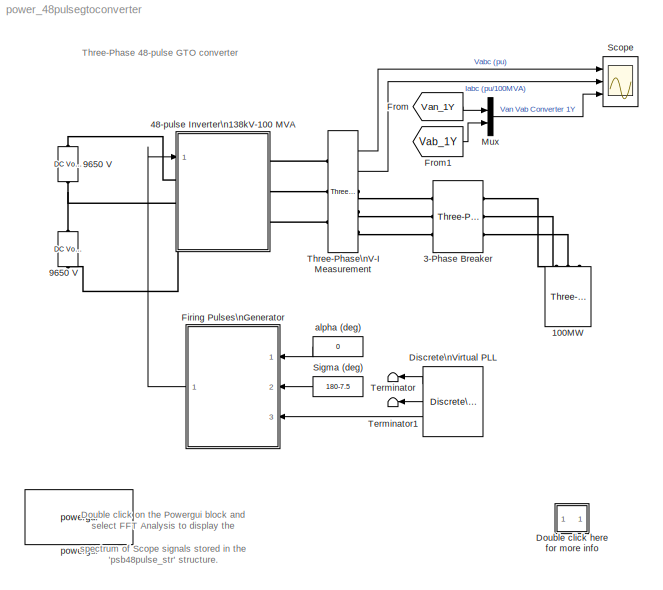
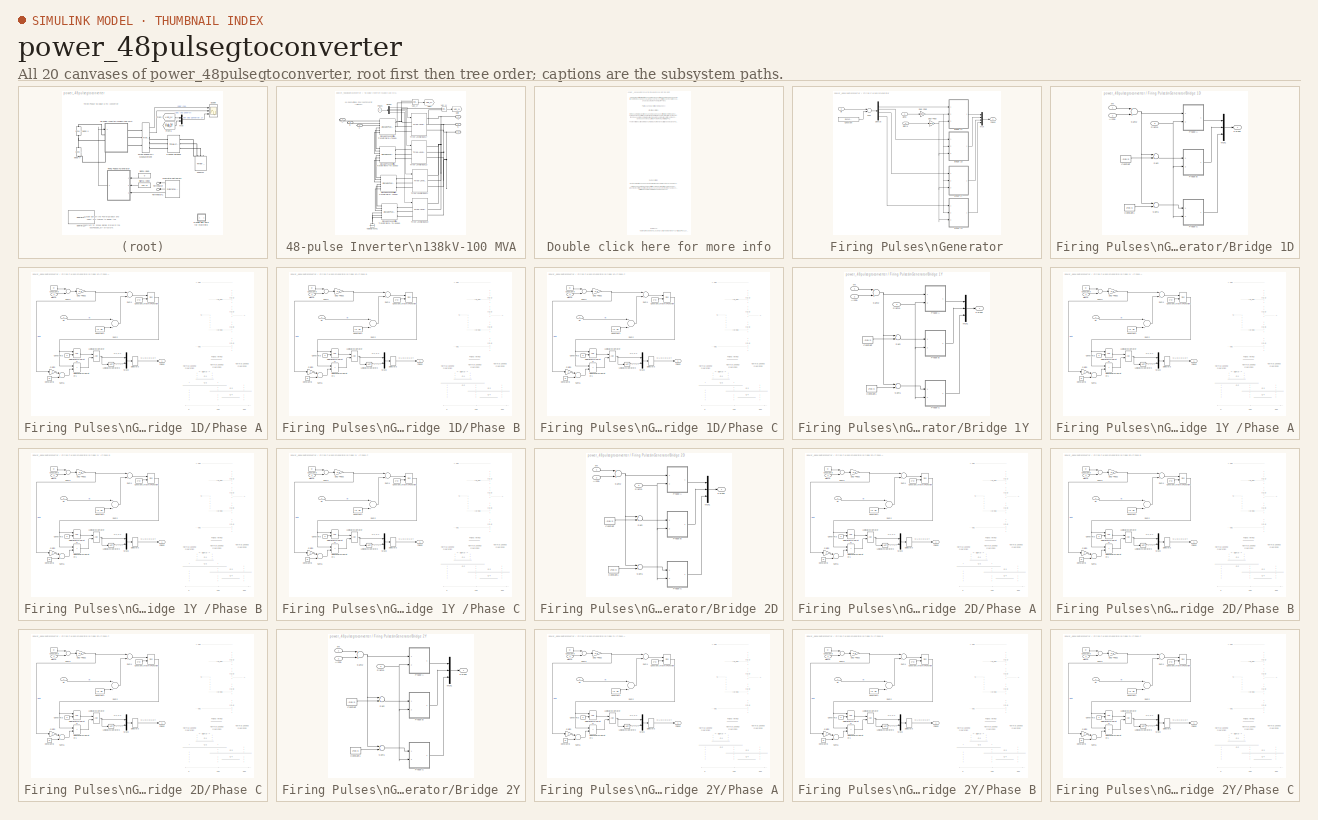
[diagram: thumbnail index - all 20 canvases of the model, root first then tree order]
MODEL power_48pulsegtoconverter
KIND model
BLOCK [Reference] 100MW  REF=powerlib/Elements/Three-Phase\nSeries RLC Load
  ActivePower = 100e6
  AttributesFormatString = \\n
  CapacitivePower = 0
  Configuration = Y (grounded)
  InductivePower = 0
  LConnTagsString = A|B|C
  LeftPortType = p1
  Measurements = None
  NominalFrequency = 60
  NominalVoltage = 138e3
  PhysicalDomain = powersysdomain
  Ports = [0, 0, 0, 0, 0, 3]
  RightPortType = p1
  SourceBlock = powerlib/Elements/Three-Phase\nSeries RLC Load
  SourceType = Three-Phase Series RLC Load
  SubClassName = unknown
BLOCK [Reference] 3-Phase Breaker  REF=powerlib/Elements/Three-Phase Breaker
  AttributesFormatString = \\n
  BreakerResistance = 0.001
  External = off
  InitialState = open
  Measurements = None
  Ports = [0, 0, 0, 0, 0, 3, 3]
  ShowPortLabels = on
  SnubberCapacitance = inf
  SnubberResistance = 1e6
  SourceBlock = powerlib/Elements/Three-Phase Breaker
  SourceType = Three-Phase Breaker
  SwitchA = on
  SwitchB = on
  SwitchC = on
  SwitchTimes = [0.025]
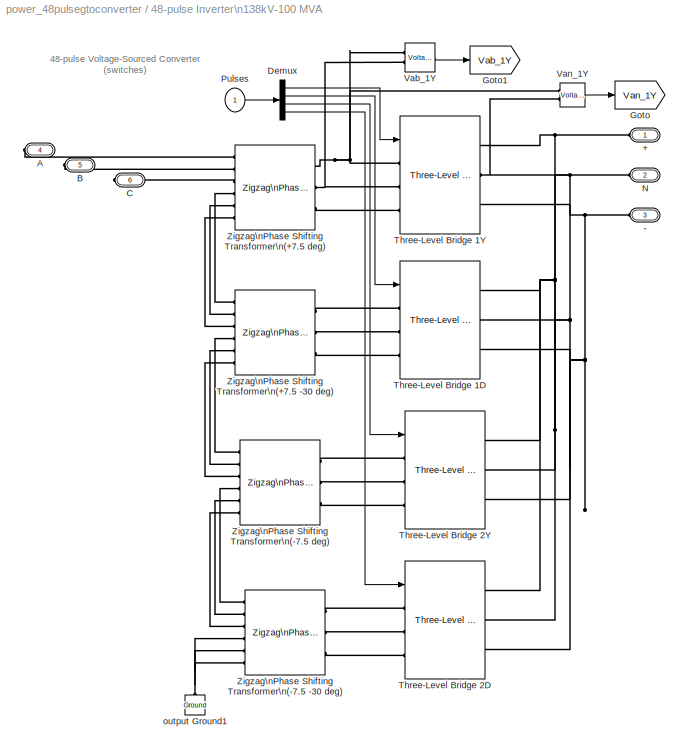
BLOCK [SubSystem] 48-pulse Inverter\n138kV-100 MVA
  MaskIconFrame = on
  MaskIconOpaque = on
  MaskIconRotate = none
  MaskIconUnits = autoscale
  MinAlgLoopOccurrences = off
  Ports = [1, 0, 0, 0, 0, 3, 3]
  RTWSystemCode = Auto
  TreatAsAtomicUnit = off
BLOCK [PMIOPort] 48-pulse Inverter\n138kV-100 MVA/+
  Port = 1
  Side = Left
BLOCK [PMIOPort] 48-pulse Inverter\n138kV-100 MVA/-
  Port = 3
  Side = Left
BLOCK [PMIOPort] 48-pulse Inverter\n138kV-100 MVA/A
  Port = 4
  Side = Right
BLOCK [PMIOPort] 48-pulse Inverter\n138kV-100 MVA/B
  Port = 5
  Side = Right
BLOCK [PMIOPort] 48-pulse Inverter\n138kV-100 MVA/C
  Port = 6
  Side = Right
BLOCK [Demux] 48-pulse Inverter\n138kV-100 MVA/Demux
  Outputs = [12 12 12 12]
  Ports = [1, 4]
BLOCK [Goto] 48-pulse Inverter\n138kV-100 MVA/Goto
  DialogController = Simulink.DDGSource
  GotoTag = Van_1Y
  TagVisibility = global
BLOCK [Goto] 48-pulse Inverter\n138kV-100 MVA/Goto1
  DialogController = Simulink.DDGSource
  GotoTag = Vab_1Y
  TagVisibility = global
BLOCK [PMIOPort] 48-pulse Inverter\n138kV-100 MVA/N
  Port = 2
  Side = Left
BLOCK [Inport] 48-pulse Inverter\n138kV-100 MVA/Pulses
  IconDisplay = Port number
  LatchInput = off
  Port = 1
  PortDimensions = 48
BLOCK [Reference] 48-pulse Inverter\n138kV-100 MVA/Three-Level Bridge 1D  REF=powerlib/Power\nElectronics/Three-Level Bridge
  Arms = 3
  AttributesFormatString = \\n
  Device = Ideal Switches
  ForwardVoltages = [  0  0  ]
  Measurements = None
  Ports = [1, 0, 0, 0, 0, 3, 3]
  Ron = 1e-4
  SbubberCapacitance = inf
  ShowPortLabels = on
  SnubberResistance = 1e6
  SourceBlock = powerlib/Power\nElectronics/Three-Level Bridge
  SourceType = Three-Level Bridge
BLOCK [Reference] 48-pulse Inverter\n138kV-100 MVA/Three-Level Bridge 1Y  REF=powerlib/Power\nElectronics/Three-Level Bridge
  Arms = 3
  AttributesFormatString = \\n
  Device = Ideal Switches
  ForwardVoltages = [  0  0  ]
  Measurements = None
  Ports = [1, 0, 0, 0, 0, 3, 3]
  Ron = 1e-4
  SbubberCapacitance = inf
  ShowPortLabels = on
  SnubberResistance = 1e6
  SourceBlock = powerlib/Power\nElectronics/Three-Level Bridge
  SourceType = Three-Level Bridge
BLOCK [Reference] 48-pulse Inverter\n138kV-100 MVA/Three-Level Bridge 2D  REF=powerlib/Power\nElectronics/Three-Level Bridge
  Arms = 3
  AttributesFormatString = \\n
  Device = Ideal Switches
  ForwardVoltages = [  0  0  ]
  Measurements = None
  Ports = [1, 0, 0, 0, 0, 3, 3]
  Ron = 1e-4
  SbubberCapacitance = inf
  ShowPortLabels = on
  SnubberResistance = 1e6
  SourceBlock = powerlib/Power\nElectronics/Three-Level Bridge
  SourceType = Three-Level Bridge
BLOCK [Reference] 48-pulse Inverter\n138kV-100 MVA/Three-Level Bridge 2Y  REF=powerlib/Power\nElectronics/Three-Level Bridge
  Arms = 3
  AttributesFormatString = \\n
  Device = Ideal Switches
  ForwardVoltages = [  0  0  ]
  Measurements = None
  Ports = [1, 0, 0, 0, 0, 3, 3]
  Ron = 1e-4
  SbubberCapacitance = inf
  ShowPortLabels = on
  SnubberResistance = 1e6
  SourceBlock = powerlib/Power\nElectronics/Three-Level Bridge
  SourceType = Three-Level Bridge
BLOCK [Reference] 48-pulse Inverter\n138kV-100 MVA/Vab_1Y  REF=powerlib/Measurements/Voltage Measurement
  AttributesFormatString = \\n
  OutputType = Magnitude
  PSBequivalent = 0
  PhasorSimulation = off
  Ports = [0, 1, 0, 0, 0, 2]
  ShowPortLabels = on
  SourceBlock = powerlib/Measurements/Voltage Measurement
  SourceType = Voltage Measurement
  Tag = PoWeRsYsTeMmEaSuReMeNt
BLOCK [Reference] 48-pulse Inverter\n138kV-100 MVA/Van_1Y  REF=powerlib/Measurements/Voltage Measurement
  AttributesFormatString = \\n
  OutputType = Magnitude
  PSBequivalent = 0
  PhasorSimulation = off
  Ports = [0, 1, 0, 0, 0, 2]
  ShowPortLabels = on
  SourceBlock = powerlib/Measurements/Voltage Measurement
  SourceType = Voltage Measurement
  Tag = PoWeRsYsTeMmEaSuReMeNt
BLOCK [Reference] 48-pulse Inverter\n138kV-100 MVA/Zigzag\nPhase Shifting Transformer\n(+7.5 -30 deg)  REF=powerlib/Elements/Zigzag\nPhase-Shifting Transformer
  AttributesFormatString = \\n
  InitialFluxes = [0,0,0]
  Measurements = Fluxes and magnetization currents (Imag)
  NominalPower = [ 25e6 60]
  Ports = [0, 0, 0, 0, 0, 6, 3]
  PrimaryVoltage = 138e3/4
  Rm = 500
  RmLm = [ 500 500 ]
  Saturation = [ 0,0  ;  0.005,1.2  ;  1.0,1.4 ]
  SecondaryConnection = Delta D1(-30 deg.)
  SecondaryVoltage = [ 15e3  +7.5]
  SetSaturation = off
  ShowPortLabels = on
  SourceBlock = powerlib/Elements/Zigzag\nPhase-Shifting Transformer
  SourceType = Zigzag Phase-Shifting Transformer
  Winding1 = [ 0.00125 0.05 ]
  Winding2 = [ 0.00125 0.05 ]
  Winding3 = [ 0.00125 0.05 ]
BLOCK [Reference] 48-pulse Inverter\n138kV-100 MVA/Zigzag\nPhase Shifting Transformer\n(+7.5 deg)  REF=powerlib/Elements/Zigzag\nPhase-Shifting Transformer
  AttributesFormatString = \\n
  InitialFluxes = [0,0,0]
  Measurements = Fluxes and excitation currents (Imag + IRm)
  NominalPower = [ 25e6 60]
  Ports = [0, 0, 0, 0, 0, 6, 3]
  PrimaryVoltage = 138e3/4
  Rm = 500
  RmLm = [ 500 500 ]
  Saturation = [ 0,0  ;  0.005,1.2  ;  1.0,1.4 ]
  SecondaryConnection = Y
  SecondaryVoltage = [ 15e3  +7.5]
  SetSaturation = off
  ShowPortLabels = on
  SourceBlock = powerlib/Elements/Zigzag\nPhase-Shifting Transformer
  SourceType = Zigzag Phase-Shifting Transformer
  Winding1 = [ 0.00125 0.05 ]
  Winding2 = [ 0.00125 0.05 ]
  Winding3 = [ 0.00125 0.05 ]
BLOCK [Reference] 48-pulse Inverter\n138kV-100 MVA/Zigzag\nPhase Shifting Transformer\n(-7.5 -30 deg)  REF=powerlib/Elements/Zigzag\nPhase-Shifting Transformer
  AttributesFormatString = \\n
  InitialFluxes = [0,0,0]
  Measurements = None
  NominalPower = [ 25e6 60]
  Ports = [0, 0, 0, 0, 0, 6, 3]
  PrimaryVoltage = 138e3/4
  Rm = 500
  RmLm = [ 500 500 ]
  Saturation = [ 0,0  ;  0.005,1.2  ;  1.0,1.4 ]
  SecondaryConnection = Delta D1(-30 deg.)
  SecondaryVoltage = [ 15e3  -7.5]
  SetSaturation = off
  ShowPortLabels = on
  SourceBlock = powerlib/Elements/Zigzag\nPhase-Shifting Transformer
  SourceType = Zigzag Phase-Shifting Transformer
  Winding1 = [ 0.00125 0.05 ]
  Winding2 = [ 0.00125 0.05 ]
  Winding3 = [ 0.00125 0.05 ]
BLOCK [Reference] 48-pulse Inverter\n138kV-100 MVA/Zigzag\nPhase Shifting Transformer\n(-7.5 deg)  REF=powerlib/Elements/Zigzag\nPhase-Shifting Transformer
  AttributesFormatString = \\n
  InitialFluxes = [0,0,0]
  Measurements = None
  NominalPower = [ 25e6 60]
  Ports = [0, 0, 0, 0, 0, 6, 3]
  PrimaryVoltage = 138e3/4
  Rm = 500
  RmLm = [ 500 500 ]
  Saturation = [ 0,0  ;  0.005,1.2  ;  1.0,1.4 ]
  SecondaryConnection = Y
  SecondaryVoltage = [ 15e3  -7.5]
  SetSaturation = off
  ShowPortLabels = on
  SourceBlock = powerlib/Elements/Zigzag\nPhase-Shifting Transformer
  SourceType = Zigzag Phase-Shifting Transformer
  Winding1 = [ 0.00125 0.05 ]
  Winding2 = [ 0.00125 0.05 ]
  Winding3 = [ 0.00125 0.05 ]
BLOCK [Reference] 48-pulse Inverter\n138kV-100 MVA/output Ground1  REF=powerlib/Elements/Ground
  AttributesFormatString = \\n
  LConnTagsString = a
  LeftPortType = p1
  PhysicalDomain = powersysdomain
  Ports = [0, 0, 0, 0, 0, 1]
  RightPortType = p1
  SourceBlock = powerlib/Elements/Ground
  SourceType = Ground
  SubClassName = unknown
BLOCK [Reference] 9650 V   REF=powerlib/Electrical\nSources/DC Voltage Source
  Amplitude = 9650
  AttributesFormatString = \\n
  Description = source block
  Measurements = None
  Ports = [0, 0, 0, 0, 0, 1, 1]
  ShowPortLabels = on
  SourceBlock = powerlib/Electrical\nSources/DC Voltage Source
  SourceType = DC Voltage Source
BLOCK [Reference] 9650 V    REF=powerlib/Electrical\nSources/DC Voltage Source
  Amplitude = 9650
  AttributesFormatString = \\n
  Description = source block
  Measurements = None
  Ports = [0, 0, 0, 0, 0, 1, 1]
  ShowPortLabels = on
  SourceBlock = powerlib/Electrical\nSources/DC Voltage Source
  SourceType = DC Voltage Source
BLOCK [Reference] Discrete\nVirtual PLL  REF=powerlib_extras/Discrete \nControl Blocks/Discrete\nVirtual PLL
  Freq = 60
  Phase = 0
  Ports = [0, 3]
  ShowPortLabels = on
  SourceBlock = powerlib_extras/Discrete \nControl Blocks/Discrete\nVirtual PLL
  SourceType = Discrete Virtual PLL
  Ts = 5e-6
BLOCK [SubSystem] Double click here for more info
  MaskDisplay = disp('?')
  MaskIconFrame = on
  MaskIconOpaque = on
  MaskIconRotate = none
  MaskIconUnits = autoscale
  MinAlgLoopOccurrences = off
  Ports = []
  RTWSystemCode = Auto
  TreatAsAtomicUnit = off
BLOCK [SubSystem] Firing Pulses\nGenerator
  MinAlgLoopOccurrences = off
  Ports = [3, 1]
  RTWSystemCode = Auto
  TreatAsAtomicUnit = off
BLOCK [Inport] Firing Pulses\nGenerator/Alpha
  IconDisplay = Port number
  LatchInput = off
  Port = 1
  PortDimensions = 1
BLOCK [SubSystem] Firing Pulses\nGenerator/Bridge 1D
  MinAlgLoopOccurrences = off
  Ports = [3, 1]
  RTWSystemCode = Auto
  TreatAsAtomicUnit = off
BLOCK [Inport] Firing Pulses\nGenerator/Bridge 1D/Alpha
  IconDisplay = Port number
  LatchInput = off
  Port = 2
  PortDimensions = 1
BLOCK [Constant] Firing Pulses\nGenerator/Bridge 1D/Constant
  Value = -2*pi/3
BLOCK [Constant] Firing Pulses\nGenerator/Bridge 1D/Constant1
  Value = 2*pi/3
BLOCK [Mux] Firing Pulses\nGenerator/Bridge 1D/Mux1
  DisplayOption = bar
  Inputs = [4 4 4]
  Ports = [3, 1]
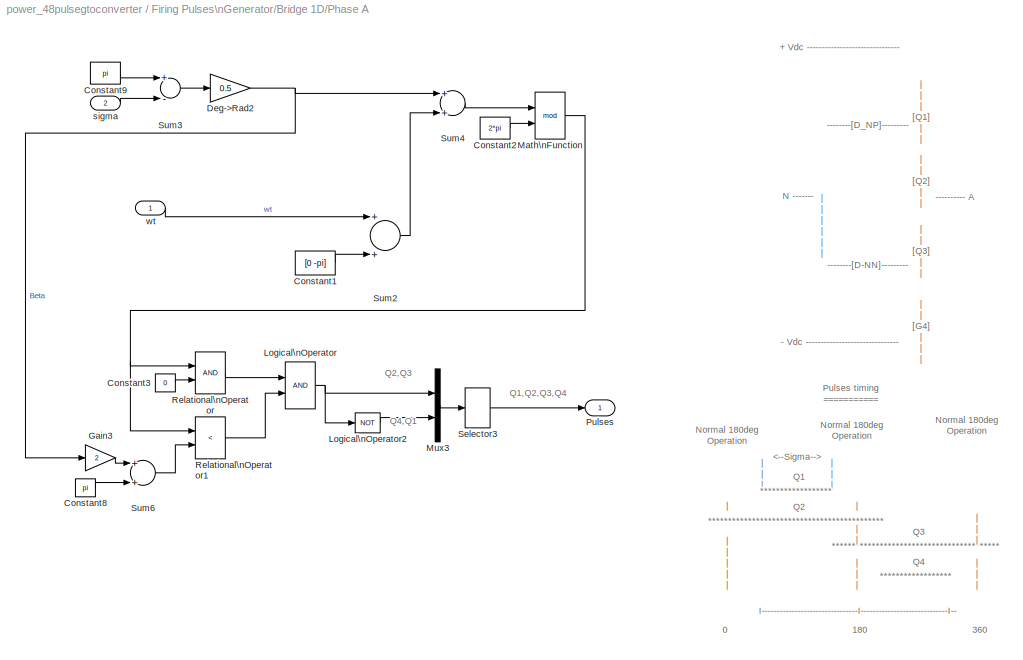
BLOCK [SubSystem] Firing Pulses\nGenerator/Bridge 1D/Phase A
  MinAlgLoopOccurrences = off
  Ports = [2, 1]
  RTWSystemCode = Auto
  TreatAsAtomicUnit = off
BLOCK [Constant] Firing Pulses\nGenerator/Bridge 1D/Phase A/Constant1
  Value = [0 -pi]
BLOCK [Constant] Firing Pulses\nGenerator/Bridge 1D/Phase A/Constant2
  Value = 2*pi
BLOCK [Constant] Firing Pulses\nGenerator/Bridge 1D/Phase A/Constant3
  Value = 0
BLOCK [Constant] Firing Pulses\nGenerator/Bridge 1D/Phase A/Constant8
  Value = pi
BLOCK [Constant] Firing Pulses\nGenerator/Bridge 1D/Phase A/Constant9
  Value = pi
BLOCK [Gain] Firing Pulses\nGenerator/Bridge 1D/Phase A/Deg->Rad2
  Gain = 0.5
BLOCK [Gain] Firing Pulses\nGenerator/Bridge 1D/Phase A/Gain3
  Gain = 2
BLOCK [Logic] Firing Pulses\nGenerator/Bridge 1D/Phase A/Logical\nOperator
  Ports = [2, 1]
BLOCK [Logic] Firing Pulses\nGenerator/Bridge 1D/Phase A/Logical\nOperator2
  Operator = NOT
  Ports = [1, 1]
BLOCK [Math] Firing Pulses\nGenerator/Bridge 1D/Phase A/Math\nFunction
  Operator = mod
  Ports = [2, 1]
BLOCK [Mux] Firing Pulses\nGenerator/Bridge 1D/Phase A/Mux3
  DisplayOption = bar
  Inputs = [2 2]
  Ports = [2, 1]
BLOCK [Outport] Firing Pulses\nGenerator/Bridge 1D/Phase A/Pulses
  BusOutputAsStruct = off
  IconDisplay = Port number
BLOCK [RelationalOperator] Firing Pulses\nGenerator/Bridge 1D/Phase A/Relational\nOperator
  ZeroCross = off
BLOCK [RelationalOperator] Firing Pulses\nGenerator/Bridge 1D/Phase A/Relational\nOperator1
  Operator = <
  ZeroCross = off
BLOCK [Selector] Firing Pulses\nGenerator/Bridge 1D/Phase A/Selector3
  Elements = [4 1 2 3]
  InputPortWidth = 4
  Ports = [1, 1]
BLOCK [Sum] Firing Pulses\nGenerator/Bridge 1D/Phase A/Sum2
  Ports = [2, 1]
BLOCK [Sum] Firing Pulses\nGenerator/Bridge 1D/Phase A/Sum3
  Inputs = +-
  Ports = [2, 1]
BLOCK [Sum] Firing Pulses\nGenerator/Bridge 1D/Phase A/Sum4
  Ports = [2, 1]
BLOCK [Sum] Firing Pulses\nGenerator/Bridge 1D/Phase A/Sum6
  Ports = [2, 1]
BLOCK [Inport] Firing Pulses\nGenerator/Bridge 1D/Phase A/sigma
  IconDisplay = Port number
  LatchInput = off
  Port = 2
  PortDimensions = 1
BLOCK [Inport] Firing Pulses\nGenerator/Bridge 1D/Phase A/wt
  IconDisplay = Port number
  LatchInput = off
  Port = 1
  PortDimensions = 1
BLOCK [SubSystem] Firing Pulses\nGenerator/Bridge 1D/Phase B
  MinAlgLoopOccurrences = off
  Ports = [2, 1]
  RTWSystemCode = Auto
  TreatAsAtomicUnit = off
BLOCK [Constant] Firing Pulses\nGenerator/Bridge 1D/Phase B/Constant1
  Value = [0 -pi]
BLOCK [Constant] Firing Pulses\nGenerator/Bridge 1D/Phase B/Constant2
  Value = 2*pi
BLOCK [Constant] Firing Pulses\nGenerator/Bridge 1D/Phase B/Constant3
  Value = 0
BLOCK [Constant] Firing Pulses\nGenerator/Bridge 1D/Phase B/Constant8
  Value = pi
BLOCK [Constant] Firing Pulses\nGenerator/Bridge 1D/Phase B/Constant9
  Value = pi
BLOCK [Gain] Firing Pulses\nGenerator/Bridge 1D/Phase B/Deg->Rad2
  Gain = 0.5
BLOCK [Gain] Firing Pulses\nGenerator/Bridge 1D/Phase B/Gain3
  Gain = 2
BLOCK [Logic] Firing Pulses\nGenerator/Bridge 1D/Phase B/Logical\nOperator
  Ports = [2, 1]
BLOCK [Logic] Firing Pulses\nGenerator/Bridge 1D/Phase B/Logical\nOperator2
  Operator = NOT
  Ports = [1, 1]
BLOCK [Math] Firing Pulses\nGenerator/Bridge 1D/Phase B/Math\nFunction
  Operator = mod
  Ports = [2, 1]
BLOCK [Mux] Firing Pulses\nGenerator/Bridge 1D/Phase B/Mux3
  DisplayOption = bar
  Inputs = [2 2]
  Ports = [2, 1]
BLOCK [Outport] Firing Pulses\nGenerator/Bridge 1D/Phase B/Pulses
  BusOutputAsStruct = off
  IconDisplay = Port number
BLOCK [RelationalOperator] Firing Pulses\nGenerator/Bridge 1D/Phase B/Relational\nOperator
  ZeroCross = off
BLOCK [RelationalOperator] Firing Pulses\nGenerator/Bridge 1D/Phase B/Relational\nOperator1
  Operator = <
  ZeroCross = off
BLOCK [Selector] Firing Pulses\nGenerator/Bridge 1D/Phase B/Selector3
  Elements = [4 1 2 3]
  InputPortWidth = 4
  Ports = [1, 1]
BLOCK [Sum] Firing Pulses\nGenerator/Bridge 1D/Phase B/Sum2
  Ports = [2, 1]
BLOCK [Sum] Firing Pulses\nGenerator/Bridge 1D/Phase B/Sum3
  Inputs = +-
  Ports = [2, 1]
BLOCK [Sum] Firing Pulses\nGenerator/Bridge 1D/Phase B/Sum4
  Ports = [2, 1]
BLOCK [Sum] Firing Pulses\nGenerator/Bridge 1D/Phase B/Sum6
  Ports = [2, 1]
BLOCK [Inport] Firing Pulses\nGenerator/Bridge 1D/Phase B/sigma
  IconDisplay = Port number
  LatchInput = off
  Port = 2
  PortDimensions = 1
BLOCK [Inport] Firing Pulses\nGenerator/Bridge 1D/Phase B/wt
  IconDisplay = Port number
  LatchInput = off
  Port = 1
  PortDimensions = 1
BLOCK [SubSystem] Firing Pulses\nGenerator/Bridge 1D/Phase C
  MinAlgLoopOccurrences = off
  Ports = [2, 1]
  RTWSystemCode = Auto
  TreatAsAtomicUnit = off
BLOCK [Constant] Firing Pulses\nGenerator/Bridge 1D/Phase C/Constant1
  Value = [0 -pi]
BLOCK [Constant] Firing Pulses\nGenerator/Bridge 1D/Phase C/Constant2
  Value = 2*pi
BLOCK [Constant] Firing Pulses\nGenerator/Bridge 1D/Phase C/Constant3
  Value = 0
BLOCK [Constant] Firing Pulses\nGenerator/Bridge 1D/Phase C/Constant8
  Value = pi
BLOCK [Constant] Firing Pulses\nGenerator/Bridge 1D/Phase C/Constant9
  Value = pi
BLOCK [Gain] Firing Pulses\nGenerator/Bridge 1D/Phase C/Deg->Rad2
  Gain = 0.5
BLOCK [Gain] Firing Pulses\nGenerator/Bridge 1D/Phase C/Gain3
  Gain = 2
BLOCK [Logic] Firing Pulses\nGenerator/Bridge 1D/Phase C/Logical\nOperator
  Ports = [2, 1]
BLOCK [Logic] Firing Pulses\nGenerator/Bridge 1D/Phase C/Logical\nOperator2
  Operator = NOT
  Ports = [1, 1]
BLOCK [Math] Firing Pulses\nGenerator/Bridge 1D/Phase C/Math\nFunction
  Operator = mod
  Ports = [2, 1]
BLOCK [Mux] Firing Pulses\nGenerator/Bridge 1D/Phase C/Mux3
  DisplayOption = bar
  Inputs = [2 2]
  Ports = [2, 1]
BLOCK [Outport] Firing Pulses\nGenerator/Bridge 1D/Phase C/Pulses
  BusOutputAsStruct = off
  IconDisplay = Port number
BLOCK [RelationalOperator] Firing Pulses\nGenerator/Bridge 1D/Phase C/Relational\nOperator
  ZeroCross = off
BLOCK [RelationalOperator] Firing Pulses\nGenerator/Bridge 1D/Phase C/Relational\nOperator1
  Operator = <
  ZeroCross = off
BLOCK [Selector] Firing Pulses\nGenerator/Bridge 1D/Phase C/Selector3
  Elements = [4 1 2 3]
  InputPortWidth = 4
  Ports = [1, 1]
BLOCK [Sum] Firing Pulses\nGenerator/Bridge 1D/Phase C/Sum2
  Ports = [2, 1]
BLOCK [Sum] Firing Pulses\nGenerator/Bridge 1D/Phase C/Sum3
  Inputs = +-
  Ports = [2, 1]
BLOCK [Sum] Firing Pulses\nGenerator/Bridge 1D/Phase C/Sum4
  Ports = [2, 1]
BLOCK [Sum] Firing Pulses\nGenerator/Bridge 1D/Phase C/Sum6
  Ports = [2, 1]
BLOCK [Inport] Firing Pulses\nGenerator/Bridge 1D/Phase C/sigma
  IconDisplay = Port number
  LatchInput = off
  Port = 2
  PortDimensions = 1
BLOCK [Inport] Firing Pulses\nGenerator/Bridge 1D/Phase C/wt
  IconDisplay = Port number
  LatchInput = off
  Port = 1
  PortDimensions = 1
BLOCK [Outport] Firing Pulses\nGenerator/Bridge 1D/Pulses
  BusOutputAsStruct = off
  IconDisplay = Port number
BLOCK [Inport] Firing Pulses\nGenerator/Bridge 1D/Sigma
  IconDisplay = Port number
  LatchInput = off
  Port = 3
  PortDimensions = 1
BLOCK [Sum] Firing Pulses\nGenerator/Bridge 1D/Sum
  Ports = [2, 1]
BLOCK [Sum] Firing Pulses\nGenerator/Bridge 1D/Sum1
  Ports = [2, 1]
BLOCK [Sum] Firing Pulses\nGenerator/Bridge 1D/Sum2
  Ports = [2, 1]
BLOCK [Inport] Firing Pulses\nGenerator/Bridge 1D/wt
  IconDisplay = Port number
  LatchInput = off
  Port = 1
  PortDimensions = 1
BLOCK [SubSystem] Firing Pulses\nGenerator/Bridge 1Y 
  MinAlgLoopOccurrences = off
  Ports = [3, 1]
  RTWSystemCode = Auto
  TreatAsAtomicUnit = off
BLOCK [Inport] Firing Pulses\nGenerator/Bridge 1Y /Alpha
  IconDisplay = Port number
  LatchInput = off
  Port = 2
  PortDimensions = 1
BLOCK [Constant] Firing Pulses\nGenerator/Bridge 1Y /Constant
  Value = -2*pi/3
BLOCK [Constant] Firing Pulses\nGenerator/Bridge 1Y /Constant1
  Value = 2*pi/3
BLOCK [Mux] Firing Pulses\nGenerator/Bridge 1Y /Mux1
  DisplayOption = bar
  Inputs = [4 4 4]
  Ports = [3, 1]
BLOCK [SubSystem] Firing Pulses\nGenerator/Bridge 1Y /Phase A
  MinAlgLoopOccurrences = off
  Ports = [2, 1]
  RTWSystemCode = Auto
  TreatAsAtomicUnit = off
BLOCK [Constant] Firing Pulses\nGenerator/Bridge 1Y /Phase A/Constant1
  Value = [0 -pi]
BLOCK [Constant] Firing Pulses\nGenerator/Bridge 1Y /Phase A/Constant2
  Value = 2*pi
BLOCK [Constant] Firing Pulses\nGenerator/Bridge 1Y /Phase A/Constant3
  Value = 0
BLOCK [Constant] Firing Pulses\nGenerator/Bridge 1Y /Phase A/Constant8
  Value = pi
BLOCK [Constant] Firing Pulses\nGenerator/Bridge 1Y /Phase A/Constant9
  Value = pi
BLOCK [Gain] Firing Pulses\nGenerator/Bridge 1Y /Phase A/Deg->Rad2
  Gain = 0.5
BLOCK [Gain] Firing Pulses\nGenerator/Bridge 1Y /Phase A/Gain3
  Gain = 2
BLOCK [Logic] Firing Pulses\nGenerator/Bridge 1Y /Phase A/Logical\nOperator
  Ports = [2, 1]
BLOCK [Logic] Firing Pulses\nGenerator/Bridge 1Y /Phase A/Logical\nOperator2
  Operator = NOT
  Ports = [1, 1]
BLOCK [Math] Firing Pulses\nGenerator/Bridge 1Y /Phase A/Math\nFunction
  Operator = mod
  Ports = [2, 1]
BLOCK [Mux] Firing Pulses\nGenerator/Bridge 1Y /Phase A/Mux3
  DisplayOption = bar
  Inputs = [2 2]
  Ports = [2, 1]
BLOCK [Outport] Firing Pulses\nGenerator/Bridge 1Y /Phase A/Pulses
  BusOutputAsStruct = off
  IconDisplay = Port number
BLOCK [RelationalOperator] Firing Pulses\nGenerator/Bridge 1Y /Phase A/Relational\nOperator
  ZeroCross = off
BLOCK [RelationalOperator] Firing Pulses\nGenerator/Bridge 1Y /Phase A/Relational\nOperator1
  Operator = <
  ZeroCross = off
BLOCK [Selector] Firing Pulses\nGenerator/Bridge 1Y /Phase A/Selector3
  Elements = [4 1 2 3]
  InputPortWidth = 4
  Ports = [1, 1]
BLOCK [Sum] Firing Pulses\nGenerator/Bridge 1Y /Phase A/Sum2
  Ports = [2, 1]
BLOCK [Sum] Firing Pulses\nGenerator/Bridge 1Y /Phase A/Sum3
  Inputs = +-
  Ports = [2, 1]
BLOCK [Sum] Firing Pulses\nGenerator/Bridge 1Y /Phase A/Sum4
  Ports = [2, 1]
BLOCK [Sum] Firing Pulses\nGenerator/Bridge 1Y /Phase A/Sum6
  Ports = [2, 1]
BLOCK [Inport] Firing Pulses\nGenerator/Bridge 1Y /Phase A/sigma
  IconDisplay = Port number
  LatchInput = off
  Port = 2
  PortDimensions = 1
BLOCK [Inport] Firing Pulses\nGenerator/Bridge 1Y /Phase A/wt
  IconDisplay = Port number
  LatchInput = off
  Port = 1
  PortDimensions = 1
BLOCK [SubSystem] Firing Pulses\nGenerator/Bridge 1Y /Phase B
  MinAlgLoopOccurrences = off
  Ports = [2, 1]
  RTWSystemCode = Auto
  TreatAsAtomicUnit = off
BLOCK [Constant] Firing Pulses\nGenerator/Bridge 1Y /Phase B/Constant1
  Value = [0 -pi]
BLOCK [Constant] Firing Pulses\nGenerator/Bridge 1Y /Phase B/Constant2
  Value = 2*pi
BLOCK [Constant] Firing Pulses\nGenerator/Bridge 1Y /Phase B/Constant3
  Value = 0
BLOCK [Constant] Firing Pulses\nGenerator/Bridge 1Y /Phase B/Constant8
  Value = pi
BLOCK [Constant] Firing Pulses\nGenerator/Bridge 1Y /Phase B/Constant9
  Value = pi
BLOCK [Gain] Firing Pulses\nGenerator/Bridge 1Y /Phase B/Deg->Rad2
  Gain = 0.5
BLOCK [Gain] Firing Pulses\nGenerator/Bridge 1Y /Phase B/Gain3
  Gain = 2
BLOCK [Logic] Firing Pulses\nGenerator/Bridge 1Y /Phase B/Logical\nOperator
  Ports = [2, 1]
BLOCK [Logic] Firing Pulses\nGenerator/Bridge 1Y /Phase B/Logical\nOperator2
  Operator = NOT
  Ports = [1, 1]
BLOCK [Math] Firing Pulses\nGenerator/Bridge 1Y /Phase B/Math\nFunction
  Operator = mod
  Ports = [2, 1]
BLOCK [Mux] Firing Pulses\nGenerator/Bridge 1Y /Phase B/Mux3
  DisplayOption = bar
  Inputs = [2 2]
  Ports = [2, 1]
BLOCK [Outport] Firing Pulses\nGenerator/Bridge 1Y /Phase B/Pulses
  BusOutputAsStruct = off
  IconDisplay = Port number
BLOCK [RelationalOperator] Firing Pulses\nGenerator/Bridge 1Y /Phase B/Relational\nOperator
  ZeroCross = off
BLOCK [RelationalOperator] Firing Pulses\nGenerator/Bridge 1Y /Phase B/Relational\nOperator1
  Operator = <
  ZeroCross = off
BLOCK [Selector] Firing Pulses\nGenerator/Bridge 1Y /Phase B/Selector3
  Elements = [4 1 2 3]
  InputPortWidth = 4
  Ports = [1, 1]
BLOCK [Sum] Firing Pulses\nGenerator/Bridge 1Y /Phase B/Sum2
  Ports = [2, 1]
BLOCK [Sum] Firing Pulses\nGenerator/Bridge 1Y /Phase B/Sum3
  Inputs = +-
  Ports = [2, 1]
BLOCK [Sum] Firing Pulses\nGenerator/Bridge 1Y /Phase B/Sum4
  Ports = [2, 1]
BLOCK [Sum] Firing Pulses\nGenerator/Bridge 1Y /Phase B/Sum6
  Ports = [2, 1]
BLOCK [Inport] Firing Pulses\nGenerator/Bridge 1Y /Phase B/sigma
  IconDisplay = Port number
  LatchInput = off
  Port = 2
  PortDimensions = 1
BLOCK [Inport] Firing Pulses\nGenerator/Bridge 1Y /Phase B/wt
  IconDisplay = Port number
  LatchInput = off
  Port = 1
  PortDimensions = 1
BLOCK [SubSystem] Firing Pulses\nGenerator/Bridge 1Y /Phase C
  MinAlgLoopOccurrences = off
  Ports = [2, 1]
  RTWSystemCode = Auto
  TreatAsAtomicUnit = off
BLOCK [Constant] Firing Pulses\nGenerator/Bridge 1Y /Phase C/Constant1
  Value = [0 -pi]
BLOCK [Constant] Firing Pulses\nGenerator/Bridge 1Y /Phase C/Constant2
  Value = 2*pi
BLOCK [Constant] Firing Pulses\nGenerator/Bridge 1Y /Phase C/Constant3
  Value = 0
BLOCK [Constant] Firing Pulses\nGenerator/Bridge 1Y /Phase C/Constant8
  Value = pi
BLOCK [Constant] Firing Pulses\nGenerator/Bridge 1Y /Phase C/Constant9
  Value = pi
BLOCK [Gain] Firing Pulses\nGenerator/Bridge 1Y /Phase C/Deg->Rad2
  Gain = 0.5
BLOCK [Gain] Firing Pulses\nGenerator/Bridge 1Y /Phase C/Gain3
  Gain = 2
BLOCK [Logic] Firing Pulses\nGenerator/Bridge 1Y /Phase C/Logical\nOperator
  Ports = [2, 1]
BLOCK [Logic] Firing Pulses\nGenerator/Bridge 1Y /Phase C/Logical\nOperator2
  Operator = NOT
  Ports = [1, 1]
BLOCK [Math] Firing Pulses\nGenerator/Bridge 1Y /Phase C/Math\nFunction
  Operator = mod
  Ports = [2, 1]
BLOCK [Mux] Firing Pulses\nGenerator/Bridge 1Y /Phase C/Mux3
  DisplayOption = bar
  Inputs = [2 2]
  Ports = [2, 1]
BLOCK [Outport] Firing Pulses\nGenerator/Bridge 1Y /Phase C/Pulses
  BusOutputAsStruct = off
  IconDisplay = Port number
BLOCK [RelationalOperator] Firing Pulses\nGenerator/Bridge 1Y /Phase C/Relational\nOperator
  ZeroCross = off
BLOCK [RelationalOperator] Firing Pulses\nGenerator/Bridge 1Y /Phase C/Relational\nOperator1
  Operator = <
  ZeroCross = off
BLOCK [Selector] Firing Pulses\nGenerator/Bridge 1Y /Phase C/Selector3
  Elements = [4 1 2 3]
  InputPortWidth = 4
  Ports = [1, 1]
BLOCK [Sum] Firing Pulses\nGenerator/Bridge 1Y /Phase C/Sum2
  Ports = [2, 1]
BLOCK [Sum] Firing Pulses\nGenerator/Bridge 1Y /Phase C/Sum3
  Inputs = +-
  Ports = [2, 1]
BLOCK [Sum] Firing Pulses\nGenerator/Bridge 1Y /Phase C/Sum4
  Ports = [2, 1]
BLOCK [Sum] Firing Pulses\nGenerator/Bridge 1Y /Phase C/Sum6
  Ports = [2, 1]
BLOCK [Inport] Firing Pulses\nGenerator/Bridge 1Y /Phase C/sigma
  IconDisplay = Port number
  LatchInput = off
  Port = 2
  PortDimensions = 1
BLOCK [Inport] Firing Pulses\nGenerator/Bridge 1Y /Phase C/wt
  IconDisplay = Port number
  LatchInput = off
  Port = 1
  PortDimensions = 1
BLOCK [Outport] Firing Pulses\nGenerator/Bridge 1Y /Pulses
  BusOutputAsStruct = off
  IconDisplay = Port number
BLOCK [Inport] Firing Pulses\nGenerator/Bridge 1Y /Sigma
  IconDisplay = Port number
  LatchInput = off
  Port = 3
  PortDimensions = 1
BLOCK [Sum] Firing Pulses\nGenerator/Bridge 1Y /Sum
  Ports = [2, 1]
BLOCK [Sum] Firing Pulses\nGenerator/Bridge 1Y /Sum1
  Ports = [2, 1]
BLOCK [Sum] Firing Pulses\nGenerator/Bridge 1Y /Sum2
  Ports = [2, 1]
BLOCK [Inport] Firing Pulses\nGenerator/Bridge 1Y /wt
  IconDisplay = Port number
  LatchInput = off
  Port = 1
  PortDimensions = 1
BLOCK [SubSystem] Firing Pulses\nGenerator/Bridge 2D
  MinAlgLoopOccurrences = off
  Ports = [3, 1]
  RTWSystemCode = Auto
  TreatAsAtomicUnit = off
BLOCK [Inport] Firing Pulses\nGenerator/Bridge 2D/Alpha
  IconDisplay = Port number
  LatchInput = off
  Port = 2
  PortDimensions = 1
BLOCK [Constant] Firing Pulses\nGenerator/Bridge 2D/Constant
  Value = -2*pi/3
BLOCK [Constant] Firing Pulses\nGenerator/Bridge 2D/Constant1
  Value = 2*pi/3
BLOCK [Mux] Firing Pulses\nGenerator/Bridge 2D/Mux1
  DisplayOption = bar
  Inputs = [4 4 4]
  Ports = [3, 1]
BLOCK [SubSystem] Firing Pulses\nGenerator/Bridge 2D/Phase A
  MinAlgLoopOccurrences = off
  Ports = [2, 1]
  RTWSystemCode = Auto
  TreatAsAtomicUnit = off
BLOCK [Constant] Firing Pulses\nGenerator/Bridge 2D/Phase A/Constant1
  Value = [0 -pi]
BLOCK [Constant] Firing Pulses\nGenerator/Bridge 2D/Phase A/Constant2
  Value = 2*pi
BLOCK [Constant] Firing Pulses\nGenerator/Bridge 2D/Phase A/Constant3
  Value = 0
BLOCK [Constant] Firing Pulses\nGenerator/Bridge 2D/Phase A/Constant8
  Value = pi
BLOCK [Constant] Firing Pulses\nGenerator/Bridge 2D/Phase A/Constant9
  Value = pi
BLOCK [Gain] Firing Pulses\nGenerator/Bridge 2D/Phase A/Deg->Rad2
  Gain = 0.5
BLOCK [Gain] Firing Pulses\nGenerator/Bridge 2D/Phase A/Gain3
  Gain = 2
BLOCK [Logic] Firing Pulses\nGenerator/Bridge 2D/Phase A/Logical\nOperator
  Ports = [2, 1]
BLOCK [Logic] Firing Pulses\nGenerator/Bridge 2D/Phase A/Logical\nOperator2
  Operator = NOT
  Ports = [1, 1]
BLOCK [Math] Firing Pulses\nGenerator/Bridge 2D/Phase A/Math\nFunction
  Operator = mod
  Ports = [2, 1]
BLOCK [Mux] Firing Pulses\nGenerator/Bridge 2D/Phase A/Mux3
  DisplayOption = bar
  Inputs = [2 2]
  Ports = [2, 1]
BLOCK [Outport] Firing Pulses\nGenerator/Bridge 2D/Phase A/Pulses
  BusOutputAsStruct = off
  IconDisplay = Port number
BLOCK [RelationalOperator] Firing Pulses\nGenerator/Bridge 2D/Phase A/Relational\nOperator
  ZeroCross = off
BLOCK [RelationalOperator] Firing Pulses\nGenerator/Bridge 2D/Phase A/Relational\nOperator1
  Operator = <
  ZeroCross = off
BLOCK [Selector] Firing Pulses\nGenerator/Bridge 2D/Phase A/Selector3
  Elements = [4 1 2 3]
  InputPortWidth = 4
  Ports = [1, 1]
BLOCK [Sum] Firing Pulses\nGenerator/Bridge 2D/Phase A/Sum2
  Ports = [2, 1]
BLOCK [Sum] Firing Pulses\nGenerator/Bridge 2D/Phase A/Sum3
  Inputs = +-
  Ports = [2, 1]
BLOCK [Sum] Firing Pulses\nGenerator/Bridge 2D/Phase A/Sum4
  Ports = [2, 1]
BLOCK [Sum] Firing Pulses\nGenerator/Bridge 2D/Phase A/Sum6
  Ports = [2, 1]
BLOCK [Inport] Firing Pulses\nGenerator/Bridge 2D/Phase A/sigma
  IconDisplay = Port number
  LatchInput = off
  Port = 2
  PortDimensions = 1
BLOCK [Inport] Firing Pulses\nGenerator/Bridge 2D/Phase A/wt
  IconDisplay = Port number
  LatchInput = off
  Port = 1
  PortDimensions = 1
BLOCK [SubSystem] Firing Pulses\nGenerator/Bridge 2D/Phase B
  MinAlgLoopOccurrences = off
  Ports = [2, 1]
  RTWSystemCode = Auto
  TreatAsAtomicUnit = off
BLOCK [Constant] Firing Pulses\nGenerator/Bridge 2D/Phase B/Constant1
  Value = [0 -pi]
BLOCK [Constant] Firing Pulses\nGenerator/Bridge 2D/Phase B/Constant2
  Value = 2*pi
BLOCK [Constant] Firing Pulses\nGenerator/Bridge 2D/Phase B/Constant3
  Value = 0
BLOCK [Constant] Firing Pulses\nGenerator/Bridge 2D/Phase B/Constant8
  Value = pi
BLOCK [Constant] Firing Pulses\nGenerator/Bridge 2D/Phase B/Constant9
  Value = pi
BLOCK [Gain] Firing Pulses\nGenerator/Bridge 2D/Phase B/Deg->Rad2
  Gain = 0.5
BLOCK [Gain] Firing Pulses\nGenerator/Bridge 2D/Phase B/Gain3
  Gain = 2
BLOCK [Logic] Firing Pulses\nGenerator/Bridge 2D/Phase B/Logical\nOperator
  Ports = [2, 1]
BLOCK [Logic] Firing Pulses\nGenerator/Bridge 2D/Phase B/Logical\nOperator2
  Operator = NOT
  Ports = [1, 1]
BLOCK [Math] Firing Pulses\nGenerator/Bridge 2D/Phase B/Math\nFunction
  Operator = mod
  Ports = [2, 1]
BLOCK [Mux] Firing Pulses\nGenerator/Bridge 2D/Phase B/Mux3
  DisplayOption = bar
  Inputs = [2 2]
  Ports = [2, 1]
BLOCK [Outport] Firing Pulses\nGenerator/Bridge 2D/Phase B/Pulses
  BusOutputAsStruct = off
  IconDisplay = Port number
BLOCK [RelationalOperator] Firing Pulses\nGenerator/Bridge 2D/Phase B/Relational\nOperator
  ZeroCross = off
BLOCK [RelationalOperator] Firing Pulses\nGenerator/Bridge 2D/Phase B/Relational\nOperator1
  Operator = <
  ZeroCross = off
BLOCK [Selector] Firing Pulses\nGenerator/Bridge 2D/Phase B/Selector3
  Elements = [4 1 2 3]
  InputPortWidth = 4
  Ports = [1, 1]
BLOCK [Sum] Firing Pulses\nGenerator/Bridge 2D/Phase B/Sum2
  Ports = [2, 1]
BLOCK [Sum] Firing Pulses\nGenerator/Bridge 2D/Phase B/Sum3
  Inputs = +-
  Ports = [2, 1]
BLOCK [Sum] Firing Pulses\nGenerator/Bridge 2D/Phase B/Sum4
  Ports = [2, 1]
BLOCK [Sum] Firing Pulses\nGenerator/Bridge 2D/Phase B/Sum6
  Ports = [2, 1]
BLOCK [Inport] Firing Pulses\nGenerator/Bridge 2D/Phase B/sigma
  IconDisplay = Port number
  LatchInput = off
  Port = 2
  PortDimensions = 1
BLOCK [Inport] Firing Pulses\nGenerator/Bridge 2D/Phase B/wt
  IconDisplay = Port number
  LatchInput = off
  Port = 1
  PortDimensions = 1
BLOCK [SubSystem] Firing Pulses\nGenerator/Bridge 2D/Phase C
  MinAlgLoopOccurrences = off
  Ports = [2, 1]
  RTWSystemCode = Auto
  TreatAsAtomicUnit = off
BLOCK [Constant] Firing Pulses\nGenerator/Bridge 2D/Phase C/Constant1
  Value = [0 -pi]
BLOCK [Constant] Firing Pulses\nGenerator/Bridge 2D/Phase C/Constant2
  Value = 2*pi
BLOCK [Constant] Firing Pulses\nGenerator/Bridge 2D/Phase C/Constant3
  Value = 0
BLOCK [Constant] Firing Pulses\nGenerator/Bridge 2D/Phase C/Constant8
  Value = pi
BLOCK [Constant] Firing Pulses\nGenerator/Bridge 2D/Phase C/Constant9
  Value = pi
BLOCK [Gain] Firing Pulses\nGenerator/Bridge 2D/Phase C/Deg->Rad2
  Gain = 0.5
BLOCK [Gain] Firing Pulses\nGenerator/Bridge 2D/Phase C/Gain3
  Gain = 2
BLOCK [Logic] Firing Pulses\nGenerator/Bridge 2D/Phase C/Logical\nOperator
  Ports = [2, 1]
BLOCK [Logic] Firing Pulses\nGenerator/Bridge 2D/Phase C/Logical\nOperator2
  Operator = NOT
  Ports = [1, 1]
BLOCK [Math] Firing Pulses\nGenerator/Bridge 2D/Phase C/Math\nFunction
  Operator = mod
  Ports = [2, 1]
BLOCK [Mux] Firing Pulses\nGenerator/Bridge 2D/Phase C/Mux3
  DisplayOption = bar
  Inputs = [2 2]
  Ports = [2, 1]
BLOCK [Outport] Firing Pulses\nGenerator/Bridge 2D/Phase C/Pulses
  BusOutputAsStruct = off
  IconDisplay = Port number
BLOCK [RelationalOperator] Firing Pulses\nGenerator/Bridge 2D/Phase C/Relational\nOperator
  ZeroCross = off
BLOCK [RelationalOperator] Firing Pulses\nGenerator/Bridge 2D/Phase C/Relational\nOperator1
  Operator = <
  ZeroCross = off
BLOCK [Selector] Firing Pulses\nGenerator/Bridge 2D/Phase C/Selector3
  Elements = [4 1 2 3]
  InputPortWidth = 4
  Ports = [1, 1]
BLOCK [Sum] Firing Pulses\nGenerator/Bridge 2D/Phase C/Sum2
  Ports = [2, 1]
BLOCK [Sum] Firing Pulses\nGenerator/Bridge 2D/Phase C/Sum3
  Inputs = +-
  Ports = [2, 1]
BLOCK [Sum] Firing Pulses\nGenerator/Bridge 2D/Phase C/Sum4
  Ports = [2, 1]
BLOCK [Sum] Firing Pulses\nGenerator/Bridge 2D/Phase C/Sum6
  Ports = [2, 1]
BLOCK [Inport] Firing Pulses\nGenerator/Bridge 2D/Phase C/sigma
  IconDisplay = Port number
  LatchInput = off
  Port = 2
  PortDimensions = 1
BLOCK [Inport] Firing Pulses\nGenerator/Bridge 2D/Phase C/wt
  IconDisplay = Port number
  LatchInput = off
  Port = 1
  PortDimensions = 1
BLOCK [Outport] Firing Pulses\nGenerator/Bridge 2D/Pulses
  BusOutputAsStruct = off
  IconDisplay = Port number
BLOCK [Inport] Firing Pulses\nGenerator/Bridge 2D/Sigma
  IconDisplay = Port number
  LatchInput = off
  Port = 3
  PortDimensions = 1
BLOCK [Sum] Firing Pulses\nGenerator/Bridge 2D/Sum
  Ports = [2, 1]
BLOCK [Sum] Firing Pulses\nGenerator/Bridge 2D/Sum1
  Ports = [2, 1]
BLOCK [Sum] Firing Pulses\nGenerator/Bridge 2D/Sum2
  Ports = [2, 1]
BLOCK [Inport] Firing Pulses\nGenerator/Bridge 2D/wt
  IconDisplay = Port number
  LatchInput = off
  Port = 1
  PortDimensions = 1
BLOCK [SubSystem] Firing Pulses\nGenerator/Bridge 2Y
  MinAlgLoopOccurrences = off
  Ports = [3, 1]
  RTWSystemCode = Auto
  TreatAsAtomicUnit = off
BLOCK [Inport] Firing Pulses\nGenerator/Bridge 2Y/Alpha
  IconDisplay = Port number
  LatchInput = off
  Port = 2
  PortDimensions = 1
BLOCK [Constant] Firing Pulses\nGenerator/Bridge 2Y/Constant
  Value = -2*pi/3
BLOCK [Constant] Firing Pulses\nGenerator/Bridge 2Y/Constant1
  Value = 2*pi/3
BLOCK [Mux] Firing Pulses\nGenerator/Bridge 2Y/Mux1
  DisplayOption = bar
  Inputs = [4 4 4]
  Ports = [3, 1]
BLOCK [SubSystem] Firing Pulses\nGenerator/Bridge 2Y/Phase A
  MinAlgLoopOccurrences = off
  Ports = [2, 1]
  RTWSystemCode = Auto
  TreatAsAtomicUnit = off
BLOCK [Constant] Firing Pulses\nGenerator/Bridge 2Y/Phase A/Constant1
  Value = [0 -pi]
BLOCK [Constant] Firing Pulses\nGenerator/Bridge 2Y/Phase A/Constant2
  Value = 2*pi
BLOCK [Constant] Firing Pulses\nGenerator/Bridge 2Y/Phase A/Constant3
  Value = 0
BLOCK [Constant] Firing Pulses\nGenerator/Bridge 2Y/Phase A/Constant8
  Value = pi
BLOCK [Constant] Firing Pulses\nGenerator/Bridge 2Y/Phase A/Constant9
  Value = pi
BLOCK [Gain] Firing Pulses\nGenerator/Bridge 2Y/Phase A/Deg->Rad2
  Gain = 0.5
BLOCK [Gain] Firing Pulses\nGenerator/Bridge 2Y/Phase A/Gain3
  Gain = 2
BLOCK [Logic] Firing Pulses\nGenerator/Bridge 2Y/Phase A/Logical\nOperator
  Ports = [2, 1]
BLOCK [Logic] Firing Pulses\nGenerator/Bridge 2Y/Phase A/Logical\nOperator2
  Operator = NOT
  Ports = [1, 1]
BLOCK [Math] Firing Pulses\nGenerator/Bridge 2Y/Phase A/Math\nFunction
  Operator = mod
  Ports = [2, 1]
BLOCK [Mux] Firing Pulses\nGenerator/Bridge 2Y/Phase A/Mux3
  DisplayOption = bar
  Inputs = [2 2]
  Ports = [2, 1]
BLOCK [Outport] Firing Pulses\nGenerator/Bridge 2Y/Phase A/Pulses
  BusOutputAsStruct = off
  IconDisplay = Port number
BLOCK [RelationalOperator] Firing Pulses\nGenerator/Bridge 2Y/Phase A/Relational\nOperator
  ZeroCross = off
BLOCK [RelationalOperator] Firing Pulses\nGenerator/Bridge 2Y/Phase A/Relational\nOperator1
  Operator = <
  ZeroCross = off
BLOCK [Selector] Firing Pulses\nGenerator/Bridge 2Y/Phase A/Selector3
  Elements = [4 1 2 3]
  InputPortWidth = 4
  Ports = [1, 1]
BLOCK [Sum] Firing Pulses\nGenerator/Bridge 2Y/Phase A/Sum2
  Ports = [2, 1]
BLOCK [Sum] Firing Pulses\nGenerator/Bridge 2Y/Phase A/Sum3
  Inputs = +-
  Ports = [2, 1]
BLOCK [Sum] Firing Pulses\nGenerator/Bridge 2Y/Phase A/Sum4
  Ports = [2, 1]
BLOCK [Sum] Firing Pulses\nGenerator/Bridge 2Y/Phase A/Sum6
  Ports = [2, 1]
BLOCK [Inport] Firing Pulses\nGenerator/Bridge 2Y/Phase A/sigma
  IconDisplay = Port number
  LatchInput = off
  Port = 2
  PortDimensions = 1
BLOCK [Inport] Firing Pulses\nGenerator/Bridge 2Y/Phase A/wt
  IconDisplay = Port number
  LatchInput = off
  Port = 1
  PortDimensions = 1
BLOCK [SubSystem] Firing Pulses\nGenerator/Bridge 2Y/Phase B
  MinAlgLoopOccurrences = off
  Ports = [2, 1]
  RTWSystemCode = Auto
  TreatAsAtomicUnit = off
BLOCK [Constant] Firing Pulses\nGenerator/Bridge 2Y/Phase B/Constant1
  Value = [0 -pi]
BLOCK [Constant] Firing Pulses\nGenerator/Bridge 2Y/Phase B/Constant2
  Value = 2*pi
BLOCK [Constant] Firing Pulses\nGenerator/Bridge 2Y/Phase B/Constant3
  Value = 0
BLOCK [Constant] Firing Pulses\nGenerator/Bridge 2Y/Phase B/Constant8
  Value = pi
BLOCK [Constant] Firing Pulses\nGenerator/Bridge 2Y/Phase B/Constant9
  Value = pi
BLOCK [Gain] Firing Pulses\nGenerator/Bridge 2Y/Phase B/Deg->Rad2
  Gain = 0.5
BLOCK [Gain] Firing Pulses\nGenerator/Bridge 2Y/Phase B/Gain3
  Gain = 2
BLOCK [Logic] Firing Pulses\nGenerator/Bridge 2Y/Phase B/Logical\nOperator
  Ports = [2, 1]
BLOCK [Logic] Firing Pulses\nGenerator/Bridge 2Y/Phase B/Logical\nOperator2
  Operator = NOT
  Ports = [1, 1]
BLOCK [Math] Firing Pulses\nGenerator/Bridge 2Y/Phase B/Math\nFunction
  Operator = mod
  Ports = [2, 1]
BLOCK [Mux] Firing Pulses\nGenerator/Bridge 2Y/Phase B/Mux3
  DisplayOption = bar
  Inputs = [2 2]
  Ports = [2, 1]
BLOCK [Outport] Firing Pulses\nGenerator/Bridge 2Y/Phase B/Pulses
  BusOutputAsStruct = off
  IconDisplay = Port number
BLOCK [RelationalOperator] Firing Pulses\nGenerator/Bridge 2Y/Phase B/Relational\nOperator
  ZeroCross = off
BLOCK [RelationalOperator] Firing Pulses\nGenerator/Bridge 2Y/Phase B/Relational\nOperator1
  Operator = <
  ZeroCross = off
BLOCK [Selector] Firing Pulses\nGenerator/Bridge 2Y/Phase B/Selector3
  Elements = [4 1 2 3]
  InputPortWidth = 4
  Ports = [1, 1]
BLOCK [Sum] Firing Pulses\nGenerator/Bridge 2Y/Phase B/Sum2
  Ports = [2, 1]
BLOCK [Sum] Firing Pulses\nGenerator/Bridge 2Y/Phase B/Sum3
  Inputs = +-
  Ports = [2, 1]
BLOCK [Sum] Firing Pulses\nGenerator/Bridge 2Y/Phase B/Sum4
  Ports = [2, 1]
BLOCK [Sum] Firing Pulses\nGenerator/Bridge 2Y/Phase B/Sum6
  Ports = [2, 1]
BLOCK [Inport] Firing Pulses\nGenerator/Bridge 2Y/Phase B/sigma
  IconDisplay = Port number
  LatchInput = off
  Port = 2
  PortDimensions = 1
BLOCK [Inport] Firing Pulses\nGenerator/Bridge 2Y/Phase B/wt
  IconDisplay = Port number
  LatchInput = off
  Port = 1
  PortDimensions = 1
BLOCK [SubSystem] Firing Pulses\nGenerator/Bridge 2Y/Phase C
  MinAlgLoopOccurrences = off
  Ports = [2, 1]
  RTWSystemCode = Auto
  TreatAsAtomicUnit = off
BLOCK [Constant] Firing Pulses\nGenerator/Bridge 2Y/Phase C/Constant1
  Value = [0 -pi]
BLOCK [Constant] Firing Pulses\nGenerator/Bridge 2Y/Phase C/Constant2
  Value = 2*pi
BLOCK [Constant] Firing Pulses\nGenerator/Bridge 2Y/Phase C/Constant3
  Value = 0
BLOCK [Constant] Firing Pulses\nGenerator/Bridge 2Y/Phase C/Constant8
  Value = pi
BLOCK [Constant] Firing Pulses\nGenerator/Bridge 2Y/Phase C/Constant9
  Value = pi
BLOCK [Gain] Firing Pulses\nGenerator/Bridge 2Y/Phase C/Deg->Rad2
  Gain = 0.5
BLOCK [Gain] Firing Pulses\nGenerator/Bridge 2Y/Phase C/Gain3
  Gain = 2
BLOCK [Logic] Firing Pulses\nGenerator/Bridge 2Y/Phase C/Logical\nOperator
  Ports = [2, 1]
BLOCK [Logic] Firing Pulses\nGenerator/Bridge 2Y/Phase C/Logical\nOperator2
  Operator = NOT
  Ports = [1, 1]
BLOCK [Math] Firing Pulses\nGenerator/Bridge 2Y/Phase C/Math\nFunction
  Operator = mod
  Ports = [2, 1]
BLOCK [Mux] Firing Pulses\nGenerator/Bridge 2Y/Phase C/Mux3
  DisplayOption = bar
  Inputs = [2 2]
  Ports = [2, 1]
BLOCK [Outport] Firing Pulses\nGenerator/Bridge 2Y/Phase C/Pulses
  BusOutputAsStruct = off
  IconDisplay = Port number
BLOCK [RelationalOperator] Firing Pulses\nGenerator/Bridge 2Y/Phase C/Relational\nOperator
  ZeroCross = off
BLOCK [RelationalOperator] Firing Pulses\nGenerator/Bridge 2Y/Phase C/Relational\nOperator1
  Operator = <
  ZeroCross = off
BLOCK [Selector] Firing Pulses\nGenerator/Bridge 2Y/Phase C/Selector3
  Elements = [4 1 2 3]
  InputPortWidth = 4
  Ports = [1, 1]
BLOCK [Sum] Firing Pulses\nGenerator/Bridge 2Y/Phase C/Sum2
  Ports = [2, 1]
BLOCK [Sum] Firing Pulses\nGenerator/Bridge 2Y/Phase C/Sum3
  Inputs = +-
  Ports = [2, 1]
BLOCK [Sum] Firing Pulses\nGenerator/Bridge 2Y/Phase C/Sum4
  Ports = [2, 1]
BLOCK [Sum] Firing Pulses\nGenerator/Bridge 2Y/Phase C/Sum6
  Ports = [2, 1]
BLOCK [Inport] Firing Pulses\nGenerator/Bridge 2Y/Phase C/sigma
  IconDisplay = Port number
  LatchInput = off
  Port = 2
  PortDimensions = 1
BLOCK [Inport] Firing Pulses\nGenerator/Bridge 2Y/Phase C/wt
  IconDisplay = Port number
  LatchInput = off
  Port = 1
  PortDimensions = 1
BLOCK [Outport] Firing Pulses\nGenerator/Bridge 2Y/Pulses
  BusOutputAsStruct = off
  IconDisplay = Port number
BLOCK [Inport] Firing Pulses\nGenerator/Bridge 2Y/Sigma
  IconDisplay = Port number
  LatchInput = off
  Port = 3
  PortDimensions = 1
BLOCK [Sum] Firing Pulses\nGenerator/Bridge 2Y/Sum
  Ports = [2, 1]
BLOCK [Sum] Firing Pulses\nGenerator/Bridge 2Y/Sum1
  Ports = [2, 1]
BLOCK [Sum] Firing Pulses\nGenerator/Bridge 2Y/Sum2
  Ports = [2, 1]
BLOCK [Inport] Firing Pulses\nGenerator/Bridge 2Y/wt
  IconDisplay = Port number
  LatchInput = off
  Port = 1
  PortDimensions = 1
BLOCK [Constant] Firing Pulses\nGenerator/Constant
  Value = [0 -30 -15 -45]*pi/180
BLOCK [Gain] Firing Pulses\nGenerator/Deg->Rad
  Gain = pi/180
BLOCK [Gain] Firing Pulses\nGenerator/Deg->Rad 
  Gain = pi/180
BLOCK [Demux] Firing Pulses\nGenerator/Demux
  Ports = [1, 4]
BLOCK [Mux] Firing Pulses\nGenerator/Mux
  DisplayOption = bar
  Inputs = [12 12 12 12]
  Ports = [4, 1]
BLOCK [Outport] Firing Pulses\nGenerator/Pulses
  BusOutputAsStruct = off
  IconDisplay = Port number
BLOCK [Inport] Firing Pulses\nGenerator/Sigma
  IconDisplay = Port number
  LatchInput = off
  Port = 2
  PortDimensions = 1
BLOCK [Sum] Firing Pulses\nGenerator/Sum
  Ports = [2, 1]
BLOCK [Inport] Firing Pulses\nGenerator/wt
  IconDisplay = Port number
  LatchInput = off
  Port = 3
  PortDimensions = 1
BLOCK [From] From
  CloseFcn = tagdialog Close
  DialogController = Simulink.DDGSource
  GotoTag = Van_1Y
BLOCK [From] From1
  CloseFcn = tagdialog Close
  DialogController = Simulink.DDGSource
  GotoTag = Vab_1Y
BLOCK [Mux] Mux
  DisplayOption = bar
  Inputs = 2
  Ports = [2, 1]
BLOCK [Scope] Scope
  DataFormat = StructureWithTime
  LimitDataPoints = off
  NumInputPorts = 3
  Ports = [3]
  SampleInput = on
  SampleTime = -1
  SaveName = psb48pulse_str
  SaveToWorkspace = on
  TimeRange = 0.05
  YMax = 2~1~20000
  YMin = -2~-1~-20000
  ZoomMode = yonly
BLOCK [Constant] Sigma (deg)
  Value = 180-7.5
BLOCK [Terminator] Terminator
BLOCK [Terminator] Terminator1
BLOCK [Reference] Three-Phase\nV-I Measurement  REF=powerlib/Measurements/Three-Phase\nV-I Measurement
  CurrentMeasurement = yes
  Ipu = on
  LabelI = I1
  LabelV = V1
  OutputType = Magnitude
  PSBequivalent = 0
  Pbase = 100e6
  PhasorSimulation = off
  Ports = [0, 2, 0, 0, 0, 3, 3]
  SetLabelI = off
  SetLabelV = off
  ShowPortLabels = on
  SourceBlock = powerlib/Measurements/Three-Phase\nV-I Measurement
  SourceType = Three-Phase VI Measurement
  Vbase = 138e3
  VoltageMeasurement = phase-to-ground
  Vpu = on
BLOCK [Constant] alpha (deg)
  Value = 0
  VectorParams1D = off
BLOCK [Reference] powergui  REF=powerlib/powergui
  DisplayStyle = off
  Frange = logspace(0,3,50)
  FreqAxis = on
  MaxFrequency = 4000
  Ports = []
  Priority = 2
  RmsSteady = 1
  ShowPortLabels = on
  SourceBlock = powerlib/powergui
  SourceType = PSB option menu block
  StartTime = 0.025-1/60
  Ts = 5e-6
  Xlog = off
  Ylog = off
  ZoomFFT = on
  cycles = 1
  display = off
  echomessages = on
  frequency = 60
  frequencyindice = 1
  frequencyindicesteady = 1
  fundamental = 60
  methode = off
  save = off
  structure = psb48pulse_str
  variable = ZData
ANNOTATION (root): Double click on the Powergui block and\nselect FFT Analysis to display the\nspectrum of Scope signals stored in the \n'psb48pulse_str' structure.
ANNOTATION (root): Three-Phase 48-pulse GTO converter
ANNOTATION 48-pulse Inverter\n138kV-100 MVA: 48-pulse Voltage-Sourced Converter\n(switches)
ANNOTATION Double click here for more info: Circuit Description
ANNOTATION Double click here for more info: Demonstration
ANNOTATION Double click here for more info: In this example, ideal switches and zig-zag phase shifting transformers are used to build a GTO-type 100 MVA, 138 kV voltage source inverter.\nThis type of converter is used in high-power (up to 200 MVA) Flexible AC Transmission Systems (FACTS) which are used to control power flow on transmission grids.\nIt can be used, for example, to build a model of shunt or series static compensator (STATCOM o...<+3233ch>
ANNOTATION Double click here for more info: Narain G. Hingorani and Laszlo Gyuyi, \"Understanding FACTS\", IEEE Press , 2000
ANNOTATION Double click here for more info: P. Giroux and G. Sybille (Hydro-Quebec)
ANNOTATION Double click here for more info: Reference:
ANNOTATION Double click here for more info: Run the simulation and observe the following waveforms on the Scope block:\n\nVoltages generated by the inverter (trace 1), load currents (trace 2), phase-neutral voltage and phase-phase voltage of one of the four inverters (1Y) superimposed on trace 3.\nWhen the inverter is operating at no load, you can observe the three 48-step voltage waveform. When the load is switched on the voltage becomes s...<+1489ch>
ANNOTATION Double click here for more info: This demonstration illustrates use of 3-level converters and zig-zag phase-shifting\ntransformers in a 48-pulse square-wave GTO converter. It also demonstrates harmonic\nanalysis using the Powergui/FFT tool.
ANNOTATION Firing Pulses\nGenerator/Bridge 1D/Phase A: ******************
ANNOTATION Firing Pulses\nGenerator/Bridge 1D/Phase A: ******************************************
ANNOTATION Firing Pulses\nGenerator/Bridge 1D/Phase A: ********************************************
ANNOTATION Firing Pulses\nGenerator/Bridge 1D/Phase A: + Vdc -------------------------------
ANNOTATION Firing Pulses\nGenerator/Bridge 1D/Phase A: - Vdc -------------------------------
ANNOTATION Firing Pulses\nGenerator/Bridge 1D/Phase A: ---------- A
ANNOTATION Firing Pulses\nGenerator/Bridge 1D/Phase A: --------[D-NN]---------
ANNOTATION Firing Pulses\nGenerator/Bridge 1D/Phase A: --------[D_NP]---------
ANNOTATION Firing Pulses\nGenerator/Bridge 1D/Phase A: 0
ANNOTATION Firing Pulses\nGenerator/Bridge 1D/Phase A: 180
ANNOTATION Firing Pulses\nGenerator/Bridge 1D/Phase A: 360
ANNOTATION Firing Pulses\nGenerator/Bridge 1D/Phase A: I--------------------------------I-----------------------------I--
ANNOTATION Firing Pulses\nGenerator/Bridge 1D/Phase A: N -------
ANNOTATION Firing Pulses\nGenerator/Bridge 1D/Phase A: Normal 180deg\nOperation
ANNOTATION Firing Pulses\nGenerator/Bridge 1D/Phase A: Pulses timing\n===========
ANNOTATION Firing Pulses\nGenerator/Bridge 1D/Phase A: Q1
ANNOTATION Firing Pulses\nGenerator/Bridge 1D/Phase A: Q1,Q2,Q3,Q4
ANNOTATION Firing Pulses\nGenerator/Bridge 1D/Phase A: Q2
ANNOTATION Firing Pulses\nGenerator/Bridge 1D/Phase A: Q2,Q3
ANNOTATION Firing Pulses\nGenerator/Bridge 1D/Phase A: Q3
ANNOTATION Firing Pulses\nGenerator/Bridge 1D/Phase A: Q4
ANNOTATION Firing Pulses\nGenerator/Bridge 1D/Phase A: Q4,Q1
ANNOTATION Firing Pulses\nGenerator/Bridge 1D/Phase A: |\n|\n[G4]\n|\n|\n|
ANNOTATION Firing Pulses\nGenerator/Bridge 1D/Phase A: |\n|\n[Q2]\n|\n|
ANNOTATION Firing Pulses\nGenerator/Bridge 1D/Phase A: |\n|\n[Q3]\n|\n|
ANNOTATION Firing Pulses\nGenerator/Bridge 1D/Phase A: |\n|\n|
ANNOTATION Firing Pulses\nGenerator/Bridge 1D/Phase A: |\n|\n|\n[Q1]\n|\n|
ANNOTATION Firing Pulses\nGenerator/Bridge 1D/Phase A: |\n|\n|\n|\n|\n|\n|\n|\n|\n|\n|
ANNOTATION Firing Pulses\nGenerator/Bridge 1D/Phase B: ******************
ANNOTATION Firing Pulses\nGenerator/Bridge 1D/Phase B: ******************************************
ANNOTATION Firing Pulses\nGenerator/Bridge 1D/Phase B: ********************************************
ANNOTATION Firing Pulses\nGenerator/Bridge 1D/Phase B: + Vdc -------------------------------
ANNOTATION Firing Pulses\nGenerator/Bridge 1D/Phase B: - Vdc -------------------------------
ANNOTATION Firing Pulses\nGenerator/Bridge 1D/Phase B: ---------- A
ANNOTATION Firing Pulses\nGenerator/Bridge 1D/Phase B: --------[D-NN]---------
ANNOTATION Firing Pulses\nGenerator/Bridge 1D/Phase B: --------[D_NP]---------
ANNOTATION Firing Pulses\nGenerator/Bridge 1D/Phase B: 0
ANNOTATION Firing Pulses\nGenerator/Bridge 1D/Phase B: 180
ANNOTATION Firing Pulses\nGenerator/Bridge 1D/Phase B: 360
ANNOTATION Firing Pulses\nGenerator/Bridge 1D/Phase B: I--------------------------------I-----------------------------I--
ANNOTATION Firing Pulses\nGenerator/Bridge 1D/Phase B: N -------
ANNOTATION Firing Pulses\nGenerator/Bridge 1D/Phase B: Normal 180deg\nOperation
ANNOTATION Firing Pulses\nGenerator/Bridge 1D/Phase B: Pulses timing\n===========
ANNOTATION Firing Pulses\nGenerator/Bridge 1D/Phase B: Q1
ANNOTATION Firing Pulses\nGenerator/Bridge 1D/Phase B: Q1,Q2,Q3,Q4
ANNOTATION Firing Pulses\nGenerator/Bridge 1D/Phase B: Q2
ANNOTATION Firing Pulses\nGenerator/Bridge 1D/Phase B: Q2,Q3
ANNOTATION Firing Pulses\nGenerator/Bridge 1D/Phase B: Q3
ANNOTATION Firing Pulses\nGenerator/Bridge 1D/Phase B: Q4
ANNOTATION Firing Pulses\nGenerator/Bridge 1D/Phase B: Q4,Q1
ANNOTATION Firing Pulses\nGenerator/Bridge 1D/Phase B: |\n|\n[G4]\n|\n|\n|
ANNOTATION Firing Pulses\nGenerator/Bridge 1D/Phase B: |\n|\n[Q2]\n|\n|
ANNOTATION Firing Pulses\nGenerator/Bridge 1D/Phase B: |\n|\n[Q3]\n|\n|
ANNOTATION Firing Pulses\nGenerator/Bridge 1D/Phase B: |\n|\n|
ANNOTATION Firing Pulses\nGenerator/Bridge 1D/Phase B: |\n|\n|\n[Q1]\n|\n|
ANNOTATION Firing Pulses\nGenerator/Bridge 1D/Phase B: |\n|\n|\n|\n|\n|\n|\n|\n|\n|\n|
ANNOTATION Firing Pulses\nGenerator/Bridge 1D/Phase C: ******************
ANNOTATION Firing Pulses\nGenerator/Bridge 1D/Phase C: ******************************************
ANNOTATION Firing Pulses\nGenerator/Bridge 1D/Phase C: ********************************************
ANNOTATION Firing Pulses\nGenerator/Bridge 1D/Phase C: + Vdc -------------------------------
ANNOTATION Firing Pulses\nGenerator/Bridge 1D/Phase C: - Vdc -------------------------------
ANNOTATION Firing Pulses\nGenerator/Bridge 1D/Phase C: ---------- A
ANNOTATION Firing Pulses\nGenerator/Bridge 1D/Phase C: --------[D-NN]---------
ANNOTATION Firing Pulses\nGenerator/Bridge 1D/Phase C: --------[D_NP]---------
ANNOTATION Firing Pulses\nGenerator/Bridge 1D/Phase C: 0
ANNOTATION Firing Pulses\nGenerator/Bridge 1D/Phase C: 180
ANNOTATION Firing Pulses\nGenerator/Bridge 1D/Phase C: 360
ANNOTATION Firing Pulses\nGenerator/Bridge 1D/Phase C: I--------------------------------I-----------------------------I--
ANNOTATION Firing Pulses\nGenerator/Bridge 1D/Phase C: N -------
ANNOTATION Firing Pulses\nGenerator/Bridge 1D/Phase C: Normal 180deg\nOperation
ANNOTATION Firing Pulses\nGenerator/Bridge 1D/Phase C: Pulses timing\n===========
ANNOTATION Firing Pulses\nGenerator/Bridge 1D/Phase C: Q1
ANNOTATION Firing Pulses\nGenerator/Bridge 1D/Phase C: Q1,Q2,Q3,Q4
ANNOTATION Firing Pulses\nGenerator/Bridge 1D/Phase C: Q2
ANNOTATION Firing Pulses\nGenerator/Bridge 1D/Phase C: Q2,Q3
ANNOTATION Firing Pulses\nGenerator/Bridge 1D/Phase C: Q3
ANNOTATION Firing Pulses\nGenerator/Bridge 1D/Phase C: Q4
ANNOTATION Firing Pulses\nGenerator/Bridge 1D/Phase C: Q4,Q1
ANNOTATION Firing Pulses\nGenerator/Bridge 1D/Phase C: |\n|\n[G4]\n|\n|\n|
ANNOTATION Firing Pulses\nGenerator/Bridge 1D/Phase C: |\n|\n[Q2]\n|\n|
ANNOTATION Firing Pulses\nGenerator/Bridge 1D/Phase C: |\n|\n[Q3]\n|\n|
ANNOTATION Firing Pulses\nGenerator/Bridge 1D/Phase C: |\n|\n|
ANNOTATION Firing Pulses\nGenerator/Bridge 1D/Phase C: |\n|\n|\n[Q1]\n|\n|
ANNOTATION Firing Pulses\nGenerator/Bridge 1D/Phase C: |\n|\n|\n|\n|\n|\n|\n|\n|\n|\n|
ANNOTATION Firing Pulses\nGenerator/Bridge 1Y /Phase A: ******************
ANNOTATION Firing Pulses\nGenerator/Bridge 1Y /Phase A: ******************************************
ANNOTATION Firing Pulses\nGenerator/Bridge 1Y /Phase A: ********************************************
ANNOTATION Firing Pulses\nGenerator/Bridge 1Y /Phase A: + Vdc -------------------------------
ANNOTATION Firing Pulses\nGenerator/Bridge 1Y /Phase A: - Vdc -------------------------------
ANNOTATION Firing Pulses\nGenerator/Bridge 1Y /Phase A: ---------- A
ANNOTATION Firing Pulses\nGenerator/Bridge 1Y /Phase A: --------[D-NN]---------
ANNOTATION Firing Pulses\nGenerator/Bridge 1Y /Phase A: --------[D_NP]---------
ANNOTATION Firing Pulses\nGenerator/Bridge 1Y /Phase A: 0
ANNOTATION Firing Pulses\nGenerator/Bridge 1Y /Phase A: 180
ANNOTATION Firing Pulses\nGenerator/Bridge 1Y /Phase A: 360
ANNOTATION Firing Pulses\nGenerator/Bridge 1Y /Phase A: I--------------------------------I-----------------------------I--
ANNOTATION Firing Pulses\nGenerator/Bridge 1Y /Phase A: N -------
ANNOTATION Firing Pulses\nGenerator/Bridge 1Y /Phase A: Normal 180deg\nOperation
ANNOTATION Firing Pulses\nGenerator/Bridge 1Y /Phase A: Pulses timing\n===========
ANNOTATION Firing Pulses\nGenerator/Bridge 1Y /Phase A: Q1
ANNOTATION Firing Pulses\nGenerator/Bridge 1Y /Phase A: Q1,Q2,Q3,Q4
ANNOTATION Firing Pulses\nGenerator/Bridge 1Y /Phase A: Q2
ANNOTATION Firing Pulses\nGenerator/Bridge 1Y /Phase A: Q2,Q3
ANNOTATION Firing Pulses\nGenerator/Bridge 1Y /Phase A: Q3
ANNOTATION Firing Pulses\nGenerator/Bridge 1Y /Phase A: Q4
ANNOTATION Firing Pulses\nGenerator/Bridge 1Y /Phase A: Q4,Q1
ANNOTATION Firing Pulses\nGenerator/Bridge 1Y /Phase A: |\n|\n[G4]\n|\n|\n|
ANNOTATION Firing Pulses\nGenerator/Bridge 1Y /Phase A: |\n|\n[Q2]\n|\n|
ANNOTATION Firing Pulses\nGenerator/Bridge 1Y /Phase A: |\n|\n[Q3]\n|\n|
ANNOTATION Firing Pulses\nGenerator/Bridge 1Y /Phase A: |\n|\n|
ANNOTATION Firing Pulses\nGenerator/Bridge 1Y /Phase A: |\n|\n|\n[Q1]\n|\n|
ANNOTATION Firing Pulses\nGenerator/Bridge 1Y /Phase A: |\n|\n|\n|\n|\n|\n|\n|\n|\n|\n|
ANNOTATION Firing Pulses\nGenerator/Bridge 1Y /Phase B: ******************
ANNOTATION Firing Pulses\nGenerator/Bridge 1Y /Phase B: ******************************************
ANNOTATION Firing Pulses\nGenerator/Bridge 1Y /Phase B: ********************************************
ANNOTATION Firing Pulses\nGenerator/Bridge 1Y /Phase B: + Vdc -------------------------------
ANNOTATION Firing Pulses\nGenerator/Bridge 1Y /Phase B: - Vdc -------------------------------
ANNOTATION Firing Pulses\nGenerator/Bridge 1Y /Phase B: ---------- A
ANNOTATION Firing Pulses\nGenerator/Bridge 1Y /Phase B: --------[D-NN]---------
ANNOTATION Firing Pulses\nGenerator/Bridge 1Y /Phase B: --------[D_NP]---------
ANNOTATION Firing Pulses\nGenerator/Bridge 1Y /Phase B: 0
ANNOTATION Firing Pulses\nGenerator/Bridge 1Y /Phase B: 180
ANNOTATION Firing Pulses\nGenerator/Bridge 1Y /Phase B: 360
ANNOTATION Firing Pulses\nGenerator/Bridge 1Y /Phase B: I--------------------------------I-----------------------------I--
ANNOTATION Firing Pulses\nGenerator/Bridge 1Y /Phase B: N -------
ANNOTATION Firing Pulses\nGenerator/Bridge 1Y /Phase B: Normal 180deg\nOperation
ANNOTATION Firing Pulses\nGenerator/Bridge 1Y /Phase B: Pulses timing\n===========
ANNOTATION Firing Pulses\nGenerator/Bridge 1Y /Phase B: Q1
ANNOTATION Firing Pulses\nGenerator/Bridge 1Y /Phase B: Q1,Q2,Q3,Q4
ANNOTATION Firing Pulses\nGenerator/Bridge 1Y /Phase B: Q2
ANNOTATION Firing Pulses\nGenerator/Bridge 1Y /Phase B: Q2,Q3
ANNOTATION Firing Pulses\nGenerator/Bridge 1Y /Phase B: Q3
ANNOTATION Firing Pulses\nGenerator/Bridge 1Y /Phase B: Q4
ANNOTATION Firing Pulses\nGenerator/Bridge 1Y /Phase B: Q4,Q1
ANNOTATION Firing Pulses\nGenerator/Bridge 1Y /Phase B: |\n|\n[G4]\n|\n|\n|
ANNOTATION Firing Pulses\nGenerator/Bridge 1Y /Phase B: |\n|\n[Q2]\n|\n|
ANNOTATION Firing Pulses\nGenerator/Bridge 1Y /Phase B: |\n|\n[Q3]\n|\n|
ANNOTATION Firing Pulses\nGenerator/Bridge 1Y /Phase B: |\n|\n|
ANNOTATION Firing Pulses\nGenerator/Bridge 1Y /Phase B: |\n|\n|\n[Q1]\n|\n|
ANNOTATION Firing Pulses\nGenerator/Bridge 1Y /Phase B: |\n|\n|\n|\n|\n|\n|\n|\n|\n|\n|
ANNOTATION Firing Pulses\nGenerator/Bridge 1Y /Phase C: ******************
ANNOTATION Firing Pulses\nGenerator/Bridge 1Y /Phase C: ******************************************
ANNOTATION Firing Pulses\nGenerator/Bridge 1Y /Phase C: ********************************************
ANNOTATION Firing Pulses\nGenerator/Bridge 1Y /Phase C: + Vdc -------------------------------
ANNOTATION Firing Pulses\nGenerator/Bridge 1Y /Phase C: - Vdc -------------------------------
ANNOTATION Firing Pulses\nGenerator/Bridge 1Y /Phase C: ---------- A
ANNOTATION Firing Pulses\nGenerator/Bridge 1Y /Phase C: --------[D-NN]---------
ANNOTATION Firing Pulses\nGenerator/Bridge 1Y /Phase C: --------[D_NP]---------
ANNOTATION Firing Pulses\nGenerator/Bridge 1Y /Phase C: 0
ANNOTATION Firing Pulses\nGenerator/Bridge 1Y /Phase C: 180
ANNOTATION Firing Pulses\nGenerator/Bridge 1Y /Phase C: 360
ANNOTATION Firing Pulses\nGenerator/Bridge 1Y /Phase C: I--------------------------------I-----------------------------I--
ANNOTATION Firing Pulses\nGenerator/Bridge 1Y /Phase C: N -------
ANNOTATION Firing Pulses\nGenerator/Bridge 1Y /Phase C: Normal 180deg\nOperation
ANNOTATION Firing Pulses\nGenerator/Bridge 1Y /Phase C: Pulses timing\n===========
ANNOTATION Firing Pulses\nGenerator/Bridge 1Y /Phase C: Q1
ANNOTATION Firing Pulses\nGenerator/Bridge 1Y /Phase C: Q1,Q2,Q3,Q4
ANNOTATION Firing Pulses\nGenerator/Bridge 1Y /Phase C: Q2
ANNOTATION Firing Pulses\nGenerator/Bridge 1Y /Phase C: Q2,Q3
ANNOTATION Firing Pulses\nGenerator/Bridge 1Y /Phase C: Q3
ANNOTATION Firing Pulses\nGenerator/Bridge 1Y /Phase C: Q4
ANNOTATION Firing Pulses\nGenerator/Bridge 1Y /Phase C: Q4,Q1
ANNOTATION Firing Pulses\nGenerator/Bridge 1Y /Phase C: |\n|\n[G4]\n|\n|\n|
ANNOTATION Firing Pulses\nGenerator/Bridge 1Y /Phase C: |\n|\n[Q2]\n|\n|
ANNOTATION Firing Pulses\nGenerator/Bridge 1Y /Phase C: |\n|\n[Q3]\n|\n|
ANNOTATION Firing Pulses\nGenerator/Bridge 1Y /Phase C: |\n|\n|
ANNOTATION Firing Pulses\nGenerator/Bridge 1Y /Phase C: |\n|\n|\n[Q1]\n|\n|
ANNOTATION Firing Pulses\nGenerator/Bridge 1Y /Phase C: |\n|\n|\n|\n|\n|\n|\n|\n|\n|\n|
ANNOTATION Firing Pulses\nGenerator/Bridge 2D/Phase A: ******************
ANNOTATION Firing Pulses\nGenerator/Bridge 2D/Phase A: ******************************************
ANNOTATION Firing Pulses\nGenerator/Bridge 2D/Phase A: ********************************************
ANNOTATION Firing Pulses\nGenerator/Bridge 2D/Phase A: + Vdc -------------------------------
ANNOTATION Firing Pulses\nGenerator/Bridge 2D/Phase A: - Vdc -------------------------------
ANNOTATION Firing Pulses\nGenerator/Bridge 2D/Phase A: ---------- A
ANNOTATION Firing Pulses\nGenerator/Bridge 2D/Phase A: --------[D-NN]---------
ANNOTATION Firing Pulses\nGenerator/Bridge 2D/Phase A: --------[D_NP]---------
ANNOTATION Firing Pulses\nGenerator/Bridge 2D/Phase A: 0
ANNOTATION Firing Pulses\nGenerator/Bridge 2D/Phase A: 180
ANNOTATION Firing Pulses\nGenerator/Bridge 2D/Phase A: 360
ANNOTATION Firing Pulses\nGenerator/Bridge 2D/Phase A: I--------------------------------I-----------------------------I--
ANNOTATION Firing Pulses\nGenerator/Bridge 2D/Phase A: N -------
ANNOTATION Firing Pulses\nGenerator/Bridge 2D/Phase A: Normal 180deg\nOperation
ANNOTATION Firing Pulses\nGenerator/Bridge 2D/Phase A: Pulses timing\n===========
ANNOTATION Firing Pulses\nGenerator/Bridge 2D/Phase A: Q1
ANNOTATION Firing Pulses\nGenerator/Bridge 2D/Phase A: Q1,Q2,Q3,Q4
ANNOTATION Firing Pulses\nGenerator/Bridge 2D/Phase A: Q2
ANNOTATION Firing Pulses\nGenerator/Bridge 2D/Phase A: Q2,Q3
ANNOTATION Firing Pulses\nGenerator/Bridge 2D/Phase A: Q3
ANNOTATION Firing Pulses\nGenerator/Bridge 2D/Phase A: Q4
ANNOTATION Firing Pulses\nGenerator/Bridge 2D/Phase A: Q4,Q1
ANNOTATION Firing Pulses\nGenerator/Bridge 2D/Phase A: |\n|\n[G4]\n|\n|\n|
ANNOTATION Firing Pulses\nGenerator/Bridge 2D/Phase A: |\n|\n[Q2]\n|\n|
ANNOTATION Firing Pulses\nGenerator/Bridge 2D/Phase A: |\n|\n[Q3]\n|\n|
ANNOTATION Firing Pulses\nGenerator/Bridge 2D/Phase A: |\n|\n|
ANNOTATION Firing Pulses\nGenerator/Bridge 2D/Phase A: |\n|\n|\n[Q1]\n|\n|
ANNOTATION Firing Pulses\nGenerator/Bridge 2D/Phase A: |\n|\n|\n|\n|\n|\n|\n|\n|\n|\n|
ANNOTATION Firing Pulses\nGenerator/Bridge 2D/Phase B: ******************
ANNOTATION Firing Pulses\nGenerator/Bridge 2D/Phase B: ******************************************
ANNOTATION Firing Pulses\nGenerator/Bridge 2D/Phase B: ********************************************
ANNOTATION Firing Pulses\nGenerator/Bridge 2D/Phase B: + Vdc -------------------------------
ANNOTATION Firing Pulses\nGenerator/Bridge 2D/Phase B: - Vdc -------------------------------
ANNOTATION Firing Pulses\nGenerator/Bridge 2D/Phase B: ---------- A
ANNOTATION Firing Pulses\nGenerator/Bridge 2D/Phase B: --------[D-NN]---------
ANNOTATION Firing Pulses\nGenerator/Bridge 2D/Phase B: --------[D_NP]---------
ANNOTATION Firing Pulses\nGenerator/Bridge 2D/Phase B: 0
ANNOTATION Firing Pulses\nGenerator/Bridge 2D/Phase B: 180
ANNOTATION Firing Pulses\nGenerator/Bridge 2D/Phase B: 360
ANNOTATION Firing Pulses\nGenerator/Bridge 2D/Phase B: I--------------------------------I-----------------------------I--
ANNOTATION Firing Pulses\nGenerator/Bridge 2D/Phase B: N -------
ANNOTATION Firing Pulses\nGenerator/Bridge 2D/Phase B: Normal 180deg\nOperation
ANNOTATION Firing Pulses\nGenerator/Bridge 2D/Phase B: Pulses timing\n===========
ANNOTATION Firing Pulses\nGenerator/Bridge 2D/Phase B: Q1
ANNOTATION Firing Pulses\nGenerator/Bridge 2D/Phase B: Q1,Q2,Q3,Q4
ANNOTATION Firing Pulses\nGenerator/Bridge 2D/Phase B: Q2
ANNOTATION Firing Pulses\nGenerator/Bridge 2D/Phase B: Q2,Q3
ANNOTATION Firing Pulses\nGenerator/Bridge 2D/Phase B: Q3
ANNOTATION Firing Pulses\nGenerator/Bridge 2D/Phase B: Q4
ANNOTATION Firing Pulses\nGenerator/Bridge 2D/Phase B: Q4,Q1
ANNOTATION Firing Pulses\nGenerator/Bridge 2D/Phase B: |\n|\n[G4]\n|\n|\n|
ANNOTATION Firing Pulses\nGenerator/Bridge 2D/Phase B: |\n|\n[Q2]\n|\n|
ANNOTATION Firing Pulses\nGenerator/Bridge 2D/Phase B: |\n|\n[Q3]\n|\n|
ANNOTATION Firing Pulses\nGenerator/Bridge 2D/Phase B: |\n|\n|
ANNOTATION Firing Pulses\nGenerator/Bridge 2D/Phase B: |\n|\n|\n[Q1]\n|\n|
ANNOTATION Firing Pulses\nGenerator/Bridge 2D/Phase B: |\n|\n|\n|\n|\n|\n|\n|\n|\n|\n|
ANNOTATION Firing Pulses\nGenerator/Bridge 2D/Phase C: ******************
ANNOTATION Firing Pulses\nGenerator/Bridge 2D/Phase C: ******************************************
ANNOTATION Firing Pulses\nGenerator/Bridge 2D/Phase C: ********************************************
ANNOTATION Firing Pulses\nGenerator/Bridge 2D/Phase C: + Vdc -------------------------------
ANNOTATION Firing Pulses\nGenerator/Bridge 2D/Phase C: - Vdc -------------------------------
ANNOTATION Firing Pulses\nGenerator/Bridge 2D/Phase C: ---------- A
ANNOTATION Firing Pulses\nGenerator/Bridge 2D/Phase C: --------[D-NN]---------
ANNOTATION Firing Pulses\nGenerator/Bridge 2D/Phase C: --------[D_NP]---------
ANNOTATION Firing Pulses\nGenerator/Bridge 2D/Phase C: 0
ANNOTATION Firing Pulses\nGenerator/Bridge 2D/Phase C: 180
ANNOTATION Firing Pulses\nGenerator/Bridge 2D/Phase C: 360
ANNOTATION Firing Pulses\nGenerator/Bridge 2D/Phase C: I--------------------------------I-----------------------------I--
ANNOTATION Firing Pulses\nGenerator/Bridge 2D/Phase C: N -------
ANNOTATION Firing Pulses\nGenerator/Bridge 2D/Phase C: Normal 180deg\nOperation
ANNOTATION Firing Pulses\nGenerator/Bridge 2D/Phase C: Pulses timing\n===========
ANNOTATION Firing Pulses\nGenerator/Bridge 2D/Phase C: Q1
ANNOTATION Firing Pulses\nGenerator/Bridge 2D/Phase C: Q1,Q2,Q3,Q4
ANNOTATION Firing Pulses\nGenerator/Bridge 2D/Phase C: Q2
ANNOTATION Firing Pulses\nGenerator/Bridge 2D/Phase C: Q2,Q3
ANNOTATION Firing Pulses\nGenerator/Bridge 2D/Phase C: Q3
ANNOTATION Firing Pulses\nGenerator/Bridge 2D/Phase C: Q4
ANNOTATION Firing Pulses\nGenerator/Bridge 2D/Phase C: Q4,Q1
ANNOTATION Firing Pulses\nGenerator/Bridge 2D/Phase C: |\n|\n[G4]\n|\n|\n|
ANNOTATION Firing Pulses\nGenerator/Bridge 2D/Phase C: |\n|\n[Q2]\n|\n|
ANNOTATION Firing Pulses\nGenerator/Bridge 2D/Phase C: |\n|\n[Q3]\n|\n|
ANNOTATION Firing Pulses\nGenerator/Bridge 2D/Phase C: |\n|\n|
ANNOTATION Firing Pulses\nGenerator/Bridge 2D/Phase C: |\n|\n|\n[Q1]\n|\n|
ANNOTATION Firing Pulses\nGenerator/Bridge 2D/Phase C: |\n|\n|\n|\n|\n|\n|\n|\n|\n|\n|
ANNOTATION Firing Pulses\nGenerator/Bridge 2Y/Phase A: ******************
ANNOTATION Firing Pulses\nGenerator/Bridge 2Y/Phase A: ******************************************
ANNOTATION Firing Pulses\nGenerator/Bridge 2Y/Phase A: ********************************************
ANNOTATION Firing Pulses\nGenerator/Bridge 2Y/Phase A: + Vdc -------------------------------
ANNOTATION Firing Pulses\nGenerator/Bridge 2Y/Phase A: - Vdc -------------------------------
ANNOTATION Firing Pulses\nGenerator/Bridge 2Y/Phase A: ---------- A
ANNOTATION Firing Pulses\nGenerator/Bridge 2Y/Phase A: --------[D-NN]---------
ANNOTATION Firing Pulses\nGenerator/Bridge 2Y/Phase A: --------[D_NP]---------
ANNOTATION Firing Pulses\nGenerator/Bridge 2Y/Phase A: 0
ANNOTATION Firing Pulses\nGenerator/Bridge 2Y/Phase A: 180
ANNOTATION Firing Pulses\nGenerator/Bridge 2Y/Phase A: 360
ANNOTATION Firing Pulses\nGenerator/Bridge 2Y/Phase A: I--------------------------------I-----------------------------I--
ANNOTATION Firing Pulses\nGenerator/Bridge 2Y/Phase A: N -------
ANNOTATION Firing Pulses\nGenerator/Bridge 2Y/Phase A: Normal 180deg\nOperation
ANNOTATION Firing Pulses\nGenerator/Bridge 2Y/Phase A: Pulses timing\n===========
ANNOTATION Firing Pulses\nGenerator/Bridge 2Y/Phase A: Q1
ANNOTATION Firing Pulses\nGenerator/Bridge 2Y/Phase A: Q1,Q2,Q3,Q4
ANNOTATION Firing Pulses\nGenerator/Bridge 2Y/Phase A: Q2
ANNOTATION Firing Pulses\nGenerator/Bridge 2Y/Phase A: Q2,Q3
ANNOTATION Firing Pulses\nGenerator/Bridge 2Y/Phase A: Q3
ANNOTATION Firing Pulses\nGenerator/Bridge 2Y/Phase A: Q4
ANNOTATION Firing Pulses\nGenerator/Bridge 2Y/Phase A: Q4,Q1
ANNOTATION Firing Pulses\nGenerator/Bridge 2Y/Phase A: |\n|\n[G4]\n|\n|\n|
ANNOTATION Firing Pulses\nGenerator/Bridge 2Y/Phase A: |\n|\n[Q2]\n|\n|
ANNOTATION Firing Pulses\nGenerator/Bridge 2Y/Phase A: |\n|\n[Q3]\n|\n|
ANNOTATION Firing Pulses\nGenerator/Bridge 2Y/Phase A: |\n|\n|
ANNOTATION Firing Pulses\nGenerator/Bridge 2Y/Phase A: |\n|\n|\n[Q1]\n|\n|
ANNOTATION Firing Pulses\nGenerator/Bridge 2Y/Phase A: |\n|\n|\n|\n|\n|\n|\n|\n|\n|\n|
ANNOTATION Firing Pulses\nGenerator/Bridge 2Y/Phase B: ******************
ANNOTATION Firing Pulses\nGenerator/Bridge 2Y/Phase B: ******************************************
ANNOTATION Firing Pulses\nGenerator/Bridge 2Y/Phase B: ********************************************
ANNOTATION Firing Pulses\nGenerator/Bridge 2Y/Phase B: + Vdc -------------------------------
ANNOTATION Firing Pulses\nGenerator/Bridge 2Y/Phase B: - Vdc -------------------------------
ANNOTATION Firing Pulses\nGenerator/Bridge 2Y/Phase B: ---------- A
ANNOTATION Firing Pulses\nGenerator/Bridge 2Y/Phase B: --------[D-NN]---------
ANNOTATION Firing Pulses\nGenerator/Bridge 2Y/Phase B: --------[D_NP]---------
ANNOTATION Firing Pulses\nGenerator/Bridge 2Y/Phase B: 0
ANNOTATION Firing Pulses\nGenerator/Bridge 2Y/Phase B: 180
ANNOTATION Firing Pulses\nGenerator/Bridge 2Y/Phase B: 360
ANNOTATION Firing Pulses\nGenerator/Bridge 2Y/Phase B: I--------------------------------I-----------------------------I--
ANNOTATION Firing Pulses\nGenerator/Bridge 2Y/Phase B: N -------
ANNOTATION Firing Pulses\nGenerator/Bridge 2Y/Phase B: Normal 180deg\nOperation
ANNOTATION Firing Pulses\nGenerator/Bridge 2Y/Phase B: Pulses timing\n===========
ANNOTATION Firing Pulses\nGenerator/Bridge 2Y/Phase B: Q1
ANNOTATION Firing Pulses\nGenerator/Bridge 2Y/Phase B: Q1,Q2,Q3,Q4
ANNOTATION Firing Pulses\nGenerator/Bridge 2Y/Phase B: Q2
ANNOTATION Firing Pulses\nGenerator/Bridge 2Y/Phase B: Q2,Q3
ANNOTATION Firing Pulses\nGenerator/Bridge 2Y/Phase B: Q3
ANNOTATION Firing Pulses\nGenerator/Bridge 2Y/Phase B: Q4
ANNOTATION Firing Pulses\nGenerator/Bridge 2Y/Phase B: Q4,Q1
ANNOTATION Firing Pulses\nGenerator/Bridge 2Y/Phase B: |\n|\n[G4]\n|\n|\n|
ANNOTATION Firing Pulses\nGenerator/Bridge 2Y/Phase B: |\n|\n[Q2]\n|\n|
ANNOTATION Firing Pulses\nGenerator/Bridge 2Y/Phase B: |\n|\n[Q3]\n|\n|
ANNOTATION Firing Pulses\nGenerator/Bridge 2Y/Phase B: |\n|\n|
ANNOTATION Firing Pulses\nGenerator/Bridge 2Y/Phase B: |\n|\n|\n[Q1]\n|\n|
ANNOTATION Firing Pulses\nGenerator/Bridge 2Y/Phase B: |\n|\n|\n|\n|\n|\n|\n|\n|\n|\n|
ANNOTATION Firing Pulses\nGenerator/Bridge 2Y/Phase C: ******************
ANNOTATION Firing Pulses\nGenerator/Bridge 2Y/Phase C: ******************************************
ANNOTATION Firing Pulses\nGenerator/Bridge 2Y/Phase C: ********************************************
ANNOTATION Firing Pulses\nGenerator/Bridge 2Y/Phase C: + Vdc -------------------------------
ANNOTATION Firing Pulses\nGenerator/Bridge 2Y/Phase C: - Vdc -------------------------------
ANNOTATION Firing Pulses\nGenerator/Bridge 2Y/Phase C: ---------- A
ANNOTATION Firing Pulses\nGenerator/Bridge 2Y/Phase C: --------[D-NN]---------
ANNOTATION Firing Pulses\nGenerator/Bridge 2Y/Phase C: --------[D_NP]---------
ANNOTATION Firing Pulses\nGenerator/Bridge 2Y/Phase C: 0
ANNOTATION Firing Pulses\nGenerator/Bridge 2Y/Phase C: 180
ANNOTATION Firing Pulses\nGenerator/Bridge 2Y/Phase C: 360
ANNOTATION Firing Pulses\nGenerator/Bridge 2Y/Phase C: I--------------------------------I-----------------------------I--
ANNOTATION Firing Pulses\nGenerator/Bridge 2Y/Phase C: N -------
ANNOTATION Firing Pulses\nGenerator/Bridge 2Y/Phase C: Normal 180deg\nOperation
ANNOTATION Firing Pulses\nGenerator/Bridge 2Y/Phase C: Pulses timing\n===========
ANNOTATION Firing Pulses\nGenerator/Bridge 2Y/Phase C: Q1
ANNOTATION Firing Pulses\nGenerator/Bridge 2Y/Phase C: Q1,Q2,Q3,Q4
ANNOTATION Firing Pulses\nGenerator/Bridge 2Y/Phase C: Q2
ANNOTATION Firing Pulses\nGenerator/Bridge 2Y/Phase C: Q2,Q3
ANNOTATION Firing Pulses\nGenerator/Bridge 2Y/Phase C: Q3
ANNOTATION Firing Pulses\nGenerator/Bridge 2Y/Phase C: Q4
ANNOTATION Firing Pulses\nGenerator/Bridge 2Y/Phase C: Q4,Q1
ANNOTATION Firing Pulses\nGenerator/Bridge 2Y/Phase C: |\n|\n[G4]\n|\n|\n|
ANNOTATION Firing Pulses\nGenerator/Bridge 2Y/Phase C: |\n|\n[Q2]\n|\n|
ANNOTATION Firing Pulses\nGenerator/Bridge 2Y/Phase C: |\n|\n[Q3]\n|\n|
ANNOTATION Firing Pulses\nGenerator/Bridge 2Y/Phase C: |\n|\n|
ANNOTATION Firing Pulses\nGenerator/Bridge 2Y/Phase C: |\n|\n|\n[Q1]\n|\n|
ANNOTATION Firing Pulses\nGenerator/Bridge 2Y/Phase C: |\n|\n|\n|\n|\n|\n|\n|\n|\n|\n|
LINE 48-pulse Inverter\n138kV-100 MVA/Demux:1 -> 48-pulse Inverter\n138kV-100 MVA/Three-Level Bridge 1Y:1
LINE 48-pulse Inverter\n138kV-100 MVA/Demux:2 -> 48-pulse Inverter\n138kV-100 MVA/Three-Level Bridge 1D:1
LINE 48-pulse Inverter\n138kV-100 MVA/Demux:3 -> 48-pulse Inverter\n138kV-100 MVA/Three-Level Bridge 2Y:1
LINE 48-pulse Inverter\n138kV-100 MVA/Demux:4 -> 48-pulse Inverter\n138kV-100 MVA/Three-Level Bridge 2D:1
LINE 48-pulse Inverter\n138kV-100 MVA/Pulses:1 -> 48-pulse Inverter\n138kV-100 MVA/Demux:1
LINE 48-pulse Inverter\n138kV-100 MVA/Vab_1Y:1 -> 48-pulse Inverter\n138kV-100 MVA/Goto1:1
LINE 48-pulse Inverter\n138kV-100 MVA/Van_1Y:1 -> 48-pulse Inverter\n138kV-100 MVA/Goto:1
LINE Discrete\nVirtual PLL:1 -> Terminator:1
LINE Discrete\nVirtual PLL:2 -> Terminator1:1
LINE Discrete\nVirtual PLL:3 -> Firing Pulses\nGenerator:3
LINE Firing Pulses\nGenerator/Alpha:1 -> Firing Pulses\nGenerator/Deg->Rad:1
LINE Firing Pulses\nGenerator/Bridge 1D/Alpha:1 -> Firing Pulses\nGenerator/Bridge 1D/Sum2:2
LINE Firing Pulses\nGenerator/Bridge 1D/Constant1:1 -> Firing Pulses\nGenerator/Bridge 1D/Sum1:2
LINE Firing Pulses\nGenerator/Bridge 1D/Constant:1 -> Firing Pulses\nGenerator/Bridge 1D/Sum:2
LINE Firing Pulses\nGenerator/Bridge 1D/Mux1:1 -> Firing Pulses\nGenerator/Bridge 1D/Pulses:1
LINE Firing Pulses\nGenerator/Bridge 1D/Phase A/Constant1:1 -> Firing Pulses\nGenerator/Bridge 1D/Phase A/Sum2:2
LINE Firing Pulses\nGenerator/Bridge 1D/Phase A/Constant2:1 -> Firing Pulses\nGenerator/Bridge 1D/Phase A/Math\nFunction:2
LINE Firing Pulses\nGenerator/Bridge 1D/Phase A/Constant3:1 -> Firing Pulses\nGenerator/Bridge 1D/Phase A/Relational\nOperator:2
LINE Firing Pulses\nGenerator/Bridge 1D/Phase A/Constant8:1 -> Firing Pulses\nGenerator/Bridge 1D/Phase A/Sum6:2
LINE Firing Pulses\nGenerator/Bridge 1D/Phase A/Constant9:1 -> Firing Pulses\nGenerator/Bridge 1D/Phase A/Sum3:1
NET Firing Pulses\nGenerator/Bridge 1D/Phase A/Deg->Rad2:1 -> Firing Pulses\nGenerator/Bridge 1D/Phase A/Gain3:1, Firing Pulses\nGenerator/Bridge 1D/Phase A/Sum4:1
LINE Firing Pulses\nGenerator/Bridge 1D/Phase A/Gain3:1 -> Firing Pulses\nGenerator/Bridge 1D/Phase A/Sum6:1
LINE Firing Pulses\nGenerator/Bridge 1D/Phase A/Logical\nOperator2:1 -> Firing Pulses\nGenerator/Bridge 1D/Phase A/Mux3:2
NET Firing Pulses\nGenerator/Bridge 1D/Phase A/Logical\nOperator:1 -> Firing Pulses\nGenerator/Bridge 1D/Phase A/Logical\nOperator2:1, Firing Pulses\nGenerator/Bridge 1D/Phase A/Mux3:1
NET Firing Pulses\nGenerator/Bridge 1D/Phase A/Math\nFunction:1 -> Firing Pulses\nGenerator/Bridge 1D/Phase A/Relational\nOperator1:1, Firing Pulses\nGenerator/Bridge 1D/Phase A/Relational\nOperator:1
LINE Firing Pulses\nGenerator/Bridge 1D/Phase A/Mux3:1 -> Firing Pulses\nGenerator/Bridge 1D/Phase A/Selector3:1
LINE Firing Pulses\nGenerator/Bridge 1D/Phase A/Relational\nOperator1:1 -> Firing Pulses\nGenerator/Bridge 1D/Phase A/Logical\nOperator:2
LINE Firing Pulses\nGenerator/Bridge 1D/Phase A/Relational\nOperator:1 -> Firing Pulses\nGenerator/Bridge 1D/Phase A/Logical\nOperator:1
LINE Firing Pulses\nGenerator/Bridge 1D/Phase A/Selector3:1 -> Firing Pulses\nGenerator/Bridge 1D/Phase A/Pulses:1
LINE Firing Pulses\nGenerator/Bridge 1D/Phase A/Sum2:1 -> Firing Pulses\nGenerator/Bridge 1D/Phase A/Sum4:2
LINE Firing Pulses\nGenerator/Bridge 1D/Phase A/Sum3:1 -> Firing Pulses\nGenerator/Bridge 1D/Phase A/Deg->Rad2:1
LINE Firing Pulses\nGenerator/Bridge 1D/Phase A/Sum4:1 -> Firing Pulses\nGenerator/Bridge 1D/Phase A/Math\nFunction:1
LINE Firing Pulses\nGenerator/Bridge 1D/Phase A/Sum6:1 -> Firing Pulses\nGenerator/Bridge 1D/Phase A/Relational\nOperator1:2
LINE Firing Pulses\nGenerator/Bridge 1D/Phase A/sigma:1 -> Firing Pulses\nGenerator/Bridge 1D/Phase A/Sum3:2
LINE Firing Pulses\nGenerator/Bridge 1D/Phase A/wt:1 -> Firing Pulses\nGenerator/Bridge 1D/Phase A/Sum2:1
LINE Firing Pulses\nGenerator/Bridge 1D/Phase A:1 -> Firing Pulses\nGenerator/Bridge 1D/Mux1:1
LINE Firing Pulses\nGenerator/Bridge 1D/Phase B/Constant1:1 -> Firing Pulses\nGenerator/Bridge 1D/Phase B/Sum2:2
LINE Firing Pulses\nGenerator/Bridge 1D/Phase B/Constant2:1 -> Firing Pulses\nGenerator/Bridge 1D/Phase B/Math\nFunction:2
LINE Firing Pulses\nGenerator/Bridge 1D/Phase B/Constant3:1 -> Firing Pulses\nGenerator/Bridge 1D/Phase B/Relational\nOperator:2
LINE Firing Pulses\nGenerator/Bridge 1D/Phase B/Constant8:1 -> Firing Pulses\nGenerator/Bridge 1D/Phase B/Sum6:2
LINE Firing Pulses\nGenerator/Bridge 1D/Phase B/Constant9:1 -> Firing Pulses\nGenerator/Bridge 1D/Phase B/Sum3:1
NET Firing Pulses\nGenerator/Bridge 1D/Phase B/Deg->Rad2:1 -> Firing Pulses\nGenerator/Bridge 1D/Phase B/Gain3:1, Firing Pulses\nGenerator/Bridge 1D/Phase B/Sum4:1
LINE Firing Pulses\nGenerator/Bridge 1D/Phase B/Gain3:1 -> Firing Pulses\nGenerator/Bridge 1D/Phase B/Sum6:1
LINE Firing Pulses\nGenerator/Bridge 1D/Phase B/Logical\nOperator2:1 -> Firing Pulses\nGenerator/Bridge 1D/Phase B/Mux3:2
NET Firing Pulses\nGenerator/Bridge 1D/Phase B/Logical\nOperator:1 -> Firing Pulses\nGenerator/Bridge 1D/Phase B/Logical\nOperator2:1, Firing Pulses\nGenerator/Bridge 1D/Phase B/Mux3:1
NET Firing Pulses\nGenerator/Bridge 1D/Phase B/Math\nFunction:1 -> Firing Pulses\nGenerator/Bridge 1D/Phase B/Relational\nOperator1:1, Firing Pulses\nGenerator/Bridge 1D/Phase B/Relational\nOperator:1
LINE Firing Pulses\nGenerator/Bridge 1D/Phase B/Mux3:1 -> Firing Pulses\nGenerator/Bridge 1D/Phase B/Selector3:1
LINE Firing Pulses\nGenerator/Bridge 1D/Phase B/Relational\nOperator1:1 -> Firing Pulses\nGenerator/Bridge 1D/Phase B/Logical\nOperator:2
LINE Firing Pulses\nGenerator/Bridge 1D/Phase B/Relational\nOperator:1 -> Firing Pulses\nGenerator/Bridge 1D/Phase B/Logical\nOperator:1
LINE Firing Pulses\nGenerator/Bridge 1D/Phase B/Selector3:1 -> Firing Pulses\nGenerator/Bridge 1D/Phase B/Pulses:1
LINE Firing Pulses\nGenerator/Bridge 1D/Phase B/Sum2:1 -> Firing Pulses\nGenerator/Bridge 1D/Phase B/Sum4:2
LINE Firing Pulses\nGenerator/Bridge 1D/Phase B/Sum3:1 -> Firing Pulses\nGenerator/Bridge 1D/Phase B/Deg->Rad2:1
LINE Firing Pulses\nGenerator/Bridge 1D/Phase B/Sum4:1 -> Firing Pulses\nGenerator/Bridge 1D/Phase B/Math\nFunction:1
LINE Firing Pulses\nGenerator/Bridge 1D/Phase B/Sum6:1 -> Firing Pulses\nGenerator/Bridge 1D/Phase B/Relational\nOperator1:2
LINE Firing Pulses\nGenerator/Bridge 1D/Phase B/sigma:1 -> Firing Pulses\nGenerator/Bridge 1D/Phase B/Sum3:2
LINE Firing Pulses\nGenerator/Bridge 1D/Phase B/wt:1 -> Firing Pulses\nGenerator/Bridge 1D/Phase B/Sum2:1
LINE Firing Pulses\nGenerator/Bridge 1D/Phase B:1 -> Firing Pulses\nGenerator/Bridge 1D/Mux1:2
LINE Firing Pulses\nGenerator/Bridge 1D/Phase C/Constant1:1 -> Firing Pulses\nGenerator/Bridge 1D/Phase C/Sum2:2
LINE Firing Pulses\nGenerator/Bridge 1D/Phase C/Constant2:1 -> Firing Pulses\nGenerator/Bridge 1D/Phase C/Math\nFunction:2
LINE Firing Pulses\nGenerator/Bridge 1D/Phase C/Constant3:1 -> Firing Pulses\nGenerator/Bridge 1D/Phase C/Relational\nOperator:2
LINE Firing Pulses\nGenerator/Bridge 1D/Phase C/Constant8:1 -> Firing Pulses\nGenerator/Bridge 1D/Phase C/Sum6:2
LINE Firing Pulses\nGenerator/Bridge 1D/Phase C/Constant9:1 -> Firing Pulses\nGenerator/Bridge 1D/Phase C/Sum3:1
NET Firing Pulses\nGenerator/Bridge 1D/Phase C/Deg->Rad2:1 -> Firing Pulses\nGenerator/Bridge 1D/Phase C/Gain3:1, Firing Pulses\nGenerator/Bridge 1D/Phase C/Sum4:1
LINE Firing Pulses\nGenerator/Bridge 1D/Phase C/Gain3:1 -> Firing Pulses\nGenerator/Bridge 1D/Phase C/Sum6:1
LINE Firing Pulses\nGenerator/Bridge 1D/Phase C/Logical\nOperator2:1 -> Firing Pulses\nGenerator/Bridge 1D/Phase C/Mux3:2
NET Firing Pulses\nGenerator/Bridge 1D/Phase C/Logical\nOperator:1 -> Firing Pulses\nGenerator/Bridge 1D/Phase C/Logical\nOperator2:1, Firing Pulses\nGenerator/Bridge 1D/Phase C/Mux3:1
NET Firing Pulses\nGenerator/Bridge 1D/Phase C/Math\nFunction:1 -> Firing Pulses\nGenerator/Bridge 1D/Phase C/Relational\nOperator1:1, Firing Pulses\nGenerator/Bridge 1D/Phase C/Relational\nOperator:1
LINE Firing Pulses\nGenerator/Bridge 1D/Phase C/Mux3:1 -> Firing Pulses\nGenerator/Bridge 1D/Phase C/Selector3:1
LINE Firing Pulses\nGenerator/Bridge 1D/Phase C/Relational\nOperator1:1 -> Firing Pulses\nGenerator/Bridge 1D/Phase C/Logical\nOperator:2
LINE Firing Pulses\nGenerator/Bridge 1D/Phase C/Relational\nOperator:1 -> Firing Pulses\nGenerator/Bridge 1D/Phase C/Logical\nOperator:1
LINE Firing Pulses\nGenerator/Bridge 1D/Phase C/Selector3:1 -> Firing Pulses\nGenerator/Bridge 1D/Phase C/Pulses:1
LINE Firing Pulses\nGenerator/Bridge 1D/Phase C/Sum2:1 -> Firing Pulses\nGenerator/Bridge 1D/Phase C/Sum4:2
LINE Firing Pulses\nGenerator/Bridge 1D/Phase C/Sum3:1 -> Firing Pulses\nGenerator/Bridge 1D/Phase C/Deg->Rad2:1
LINE Firing Pulses\nGenerator/Bridge 1D/Phase C/Sum4:1 -> Firing Pulses\nGenerator/Bridge 1D/Phase C/Math\nFunction:1
LINE Firing Pulses\nGenerator/Bridge 1D/Phase C/Sum6:1 -> Firing Pulses\nGenerator/Bridge 1D/Phase C/Relational\nOperator1:2
LINE Firing Pulses\nGenerator/Bridge 1D/Phase C/sigma:1 -> Firing Pulses\nGenerator/Bridge 1D/Phase C/Sum3:2
LINE Firing Pulses\nGenerator/Bridge 1D/Phase C/wt:1 -> Firing Pulses\nGenerator/Bridge 1D/Phase C/Sum2:1
LINE Firing Pulses\nGenerator/Bridge 1D/Phase C:1 -> Firing Pulses\nGenerator/Bridge 1D/Mux1:3
NET Firing Pulses\nGenerator/Bridge 1D/Sigma:1 -> Firing Pulses\nGenerator/Bridge 1D/Phase A:2, Firing Pulses\nGenerator/Bridge 1D/Phase B:2, Firing Pulses\nGenerator/Bridge 1D/Phase C:2
LINE Firing Pulses\nGenerator/Bridge 1D/Sum1:1 -> Firing Pulses\nGenerator/Bridge 1D/Phase C:1
NET Firing Pulses\nGenerator/Bridge 1D/Sum2:1 -> Firing Pulses\nGenerator/Bridge 1D/Phase A:1, Firing Pulses\nGenerator/Bridge 1D/Sum1:1, Firing Pulses\nGenerator/Bridge 1D/Sum:1
LINE Firing Pulses\nGenerator/Bridge 1D/Sum:1 -> Firing Pulses\nGenerator/Bridge 1D/Phase B:1
LINE Firing Pulses\nGenerator/Bridge 1D/wt:1 -> Firing Pulses\nGenerator/Bridge 1D/Sum2:1
LINE Firing Pulses\nGenerator/Bridge 1D:1 -> Firing Pulses\nGenerator/Mux:2
LINE Firing Pulses\nGenerator/Bridge 1Y /Alpha:1 -> Firing Pulses\nGenerator/Bridge 1Y /Sum2:2
LINE Firing Pulses\nGenerator/Bridge 1Y /Constant1:1 -> Firing Pulses\nGenerator/Bridge 1Y /Sum1:2
LINE Firing Pulses\nGenerator/Bridge 1Y /Constant:1 -> Firing Pulses\nGenerator/Bridge 1Y /Sum:2
LINE Firing Pulses\nGenerator/Bridge 1Y /Mux1:1 -> Firing Pulses\nGenerator/Bridge 1Y /Pulses:1
LINE Firing Pulses\nGenerator/Bridge 1Y /Phase A/Constant1:1 -> Firing Pulses\nGenerator/Bridge 1Y /Phase A/Sum2:2
LINE Firing Pulses\nGenerator/Bridge 1Y /Phase A/Constant2:1 -> Firing Pulses\nGenerator/Bridge 1Y /Phase A/Math\nFunction:2
LINE Firing Pulses\nGenerator/Bridge 1Y /Phase A/Constant3:1 -> Firing Pulses\nGenerator/Bridge 1Y /Phase A/Relational\nOperator:2
LINE Firing Pulses\nGenerator/Bridge 1Y /Phase A/Constant8:1 -> Firing Pulses\nGenerator/Bridge 1Y /Phase A/Sum6:2
LINE Firing Pulses\nGenerator/Bridge 1Y /Phase A/Constant9:1 -> Firing Pulses\nGenerator/Bridge 1Y /Phase A/Sum3:1
NET Firing Pulses\nGenerator/Bridge 1Y /Phase A/Deg->Rad2:1 -> Firing Pulses\nGenerator/Bridge 1Y /Phase A/Gain3:1, Firing Pulses\nGenerator/Bridge 1Y /Phase A/Sum4:1
LINE Firing Pulses\nGenerator/Bridge 1Y /Phase A/Gain3:1 -> Firing Pulses\nGenerator/Bridge 1Y /Phase A/Sum6:1
LINE Firing Pulses\nGenerator/Bridge 1Y /Phase A/Logical\nOperator2:1 -> Firing Pulses\nGenerator/Bridge 1Y /Phase A/Mux3:2
NET Firing Pulses\nGenerator/Bridge 1Y /Phase A/Logical\nOperator:1 -> Firing Pulses\nGenerator/Bridge 1Y /Phase A/Logical\nOperator2:1, Firing Pulses\nGenerator/Bridge 1Y /Phase A/Mux3:1
NET Firing Pulses\nGenerator/Bridge 1Y /Phase A/Math\nFunction:1 -> Firing Pulses\nGenerator/Bridge 1Y /Phase A/Relational\nOperator1:1, Firing Pulses\nGenerator/Bridge 1Y /Phase A/Relational\nOperator:1
LINE Firing Pulses\nGenerator/Bridge 1Y /Phase A/Mux3:1 -> Firing Pulses\nGenerator/Bridge 1Y /Phase A/Selector3:1
LINE Firing Pulses\nGenerator/Bridge 1Y /Phase A/Relational\nOperator1:1 -> Firing Pulses\nGenerator/Bridge 1Y /Phase A/Logical\nOperator:2
LINE Firing Pulses\nGenerator/Bridge 1Y /Phase A/Relational\nOperator:1 -> Firing Pulses\nGenerator/Bridge 1Y /Phase A/Logical\nOperator:1
LINE Firing Pulses\nGenerator/Bridge 1Y /Phase A/Selector3:1 -> Firing Pulses\nGenerator/Bridge 1Y /Phase A/Pulses:1
LINE Firing Pulses\nGenerator/Bridge 1Y /Phase A/Sum2:1 -> Firing Pulses\nGenerator/Bridge 1Y /Phase A/Sum4:2
LINE Firing Pulses\nGenerator/Bridge 1Y /Phase A/Sum3:1 -> Firing Pulses\nGenerator/Bridge 1Y /Phase A/Deg->Rad2:1
LINE Firing Pulses\nGenerator/Bridge 1Y /Phase A/Sum4:1 -> Firing Pulses\nGenerator/Bridge 1Y /Phase A/Math\nFunction:1
LINE Firing Pulses\nGenerator/Bridge 1Y /Phase A/Sum6:1 -> Firing Pulses\nGenerator/Bridge 1Y /Phase A/Relational\nOperator1:2
LINE Firing Pulses\nGenerator/Bridge 1Y /Phase A/sigma:1 -> Firing Pulses\nGenerator/Bridge 1Y /Phase A/Sum3:2
LINE Firing Pulses\nGenerator/Bridge 1Y /Phase A/wt:1 -> Firing Pulses\nGenerator/Bridge 1Y /Phase A/Sum2:1
LINE Firing Pulses\nGenerator/Bridge 1Y /Phase A:1 -> Firing Pulses\nGenerator/Bridge 1Y /Mux1:1
LINE Firing Pulses\nGenerator/Bridge 1Y /Phase B/Constant1:1 -> Firing Pulses\nGenerator/Bridge 1Y /Phase B/Sum2:2
LINE Firing Pulses\nGenerator/Bridge 1Y /Phase B/Constant2:1 -> Firing Pulses\nGenerator/Bridge 1Y /Phase B/Math\nFunction:2
LINE Firing Pulses\nGenerator/Bridge 1Y /Phase B/Constant3:1 -> Firing Pulses\nGenerator/Bridge 1Y /Phase B/Relational\nOperator:2
LINE Firing Pulses\nGenerator/Bridge 1Y /Phase B/Constant8:1 -> Firing Pulses\nGenerator/Bridge 1Y /Phase B/Sum6:2
LINE Firing Pulses\nGenerator/Bridge 1Y /Phase B/Constant9:1 -> Firing Pulses\nGenerator/Bridge 1Y /Phase B/Sum3:1
NET Firing Pulses\nGenerator/Bridge 1Y /Phase B/Deg->Rad2:1 -> Firing Pulses\nGenerator/Bridge 1Y /Phase B/Gain3:1, Firing Pulses\nGenerator/Bridge 1Y /Phase B/Sum4:1
LINE Firing Pulses\nGenerator/Bridge 1Y /Phase B/Gain3:1 -> Firing Pulses\nGenerator/Bridge 1Y /Phase B/Sum6:1
LINE Firing Pulses\nGenerator/Bridge 1Y /Phase B/Logical\nOperator2:1 -> Firing Pulses\nGenerator/Bridge 1Y /Phase B/Mux3:2
NET Firing Pulses\nGenerator/Bridge 1Y /Phase B/Logical\nOperator:1 -> Firing Pulses\nGenerator/Bridge 1Y /Phase B/Logical\nOperator2:1, Firing Pulses\nGenerator/Bridge 1Y /Phase B/Mux3:1
NET Firing Pulses\nGenerator/Bridge 1Y /Phase B/Math\nFunction:1 -> Firing Pulses\nGenerator/Bridge 1Y /Phase B/Relational\nOperator1:1, Firing Pulses\nGenerator/Bridge 1Y /Phase B/Relational\nOperator:1
LINE Firing Pulses\nGenerator/Bridge 1Y /Phase B/Mux3:1 -> Firing Pulses\nGenerator/Bridge 1Y /Phase B/Selector3:1
LINE Firing Pulses\nGenerator/Bridge 1Y /Phase B/Relational\nOperator1:1 -> Firing Pulses\nGenerator/Bridge 1Y /Phase B/Logical\nOperator:2
LINE Firing Pulses\nGenerator/Bridge 1Y /Phase B/Relational\nOperator:1 -> Firing Pulses\nGenerator/Bridge 1Y /Phase B/Logical\nOperator:1
LINE Firing Pulses\nGenerator/Bridge 1Y /Phase B/Selector3:1 -> Firing Pulses\nGenerator/Bridge 1Y /Phase B/Pulses:1
LINE Firing Pulses\nGenerator/Bridge 1Y /Phase B/Sum2:1 -> Firing Pulses\nGenerator/Bridge 1Y /Phase B/Sum4:2
LINE Firing Pulses\nGenerator/Bridge 1Y /Phase B/Sum3:1 -> Firing Pulses\nGenerator/Bridge 1Y /Phase B/Deg->Rad2:1
LINE Firing Pulses\nGenerator/Bridge 1Y /Phase B/Sum4:1 -> Firing Pulses\nGenerator/Bridge 1Y /Phase B/Math\nFunction:1
LINE Firing Pulses\nGenerator/Bridge 1Y /Phase B/Sum6:1 -> Firing Pulses\nGenerator/Bridge 1Y /Phase B/Relational\nOperator1:2
LINE Firing Pulses\nGenerator/Bridge 1Y /Phase B/sigma:1 -> Firing Pulses\nGenerator/Bridge 1Y /Phase B/Sum3:2
LINE Firing Pulses\nGenerator/Bridge 1Y /Phase B/wt:1 -> Firing Pulses\nGenerator/Bridge 1Y /Phase B/Sum2:1
LINE Firing Pulses\nGenerator/Bridge 1Y /Phase B:1 -> Firing Pulses\nGenerator/Bridge 1Y /Mux1:2
LINE Firing Pulses\nGenerator/Bridge 1Y /Phase C/Constant1:1 -> Firing Pulses\nGenerator/Bridge 1Y /Phase C/Sum2:2
LINE Firing Pulses\nGenerator/Bridge 1Y /Phase C/Constant2:1 -> Firing Pulses\nGenerator/Bridge 1Y /Phase C/Math\nFunction:2
LINE Firing Pulses\nGenerator/Bridge 1Y /Phase C/Constant3:1 -> Firing Pulses\nGenerator/Bridge 1Y /Phase C/Relational\nOperator:2
LINE Firing Pulses\nGenerator/Bridge 1Y /Phase C/Constant8:1 -> Firing Pulses\nGenerator/Bridge 1Y /Phase C/Sum6:2
LINE Firing Pulses\nGenerator/Bridge 1Y /Phase C/Constant9:1 -> Firing Pulses\nGenerator/Bridge 1Y /Phase C/Sum3:1
NET Firing Pulses\nGenerator/Bridge 1Y /Phase C/Deg->Rad2:1 -> Firing Pulses\nGenerator/Bridge 1Y /Phase C/Gain3:1, Firing Pulses\nGenerator/Bridge 1Y /Phase C/Sum4:1
LINE Firing Pulses\nGenerator/Bridge 1Y /Phase C/Gain3:1 -> Firing Pulses\nGenerator/Bridge 1Y /Phase C/Sum6:1
LINE Firing Pulses\nGenerator/Bridge 1Y /Phase C/Logical\nOperator2:1 -> Firing Pulses\nGenerator/Bridge 1Y /Phase C/Mux3:2
NET Firing Pulses\nGenerator/Bridge 1Y /Phase C/Logical\nOperator:1 -> Firing Pulses\nGenerator/Bridge 1Y /Phase C/Logical\nOperator2:1, Firing Pulses\nGenerator/Bridge 1Y /Phase C/Mux3:1
NET Firing Pulses\nGenerator/Bridge 1Y /Phase C/Math\nFunction:1 -> Firing Pulses\nGenerator/Bridge 1Y /Phase C/Relational\nOperator1:1, Firing Pulses\nGenerator/Bridge 1Y /Phase C/Relational\nOperator:1
LINE Firing Pulses\nGenerator/Bridge 1Y /Phase C/Mux3:1 -> Firing Pulses\nGenerator/Bridge 1Y /Phase C/Selector3:1
LINE Firing Pulses\nGenerator/Bridge 1Y /Phase C/Relational\nOperator1:1 -> Firing Pulses\nGenerator/Bridge 1Y /Phase C/Logical\nOperator:2
LINE Firing Pulses\nGenerator/Bridge 1Y /Phase C/Relational\nOperator:1 -> Firing Pulses\nGenerator/Bridge 1Y /Phase C/Logical\nOperator:1
LINE Firing Pulses\nGenerator/Bridge 1Y /Phase C/Selector3:1 -> Firing Pulses\nGenerator/Bridge 1Y /Phase C/Pulses:1
LINE Firing Pulses\nGenerator/Bridge 1Y /Phase C/Sum2:1 -> Firing Pulses\nGenerator/Bridge 1Y /Phase C/Sum4:2
LINE Firing Pulses\nGenerator/Bridge 1Y /Phase C/Sum3:1 -> Firing Pulses\nGenerator/Bridge 1Y /Phase C/Deg->Rad2:1
LINE Firing Pulses\nGenerator/Bridge 1Y /Phase C/Sum4:1 -> Firing Pulses\nGenerator/Bridge 1Y /Phase C/Math\nFunction:1
LINE Firing Pulses\nGenerator/Bridge 1Y /Phase C/Sum6:1 -> Firing Pulses\nGenerator/Bridge 1Y /Phase C/Relational\nOperator1:2
LINE Firing Pulses\nGenerator/Bridge 1Y /Phase C/sigma:1 -> Firing Pulses\nGenerator/Bridge 1Y /Phase C/Sum3:2
LINE Firing Pulses\nGenerator/Bridge 1Y /Phase C/wt:1 -> Firing Pulses\nGenerator/Bridge 1Y /Phase C/Sum2:1
LINE Firing Pulses\nGenerator/Bridge 1Y /Phase C:1 -> Firing Pulses\nGenerator/Bridge 1Y /Mux1:3
NET Firing Pulses\nGenerator/Bridge 1Y /Sigma:1 -> Firing Pulses\nGenerator/Bridge 1Y /Phase A:2, Firing Pulses\nGenerator/Bridge 1Y /Phase B:2, Firing Pulses\nGenerator/Bridge 1Y /Phase C:2
LINE Firing Pulses\nGenerator/Bridge 1Y /Sum1:1 -> Firing Pulses\nGenerator/Bridge 1Y /Phase C:1
NET Firing Pulses\nGenerator/Bridge 1Y /Sum2:1 -> Firing Pulses\nGenerator/Bridge 1Y /Phase A:1, Firing Pulses\nGenerator/Bridge 1Y /Sum1:1, Firing Pulses\nGenerator/Bridge 1Y /Sum:1
LINE Firing Pulses\nGenerator/Bridge 1Y /Sum:1 -> Firing Pulses\nGenerator/Bridge 1Y /Phase B:1
LINE Firing Pulses\nGenerator/Bridge 1Y /wt:1 -> Firing Pulses\nGenerator/Bridge 1Y /Sum2:1
LINE Firing Pulses\nGenerator/Bridge 1Y :1 -> Firing Pulses\nGenerator/Mux:1
LINE Firing Pulses\nGenerator/Bridge 2D/Alpha:1 -> Firing Pulses\nGenerator/Bridge 2D/Sum2:2
LINE Firing Pulses\nGenerator/Bridge 2D/Constant1:1 -> Firing Pulses\nGenerator/Bridge 2D/Sum1:2
LINE Firing Pulses\nGenerator/Bridge 2D/Constant:1 -> Firing Pulses\nGenerator/Bridge 2D/Sum:2
LINE Firing Pulses\nGenerator/Bridge 2D/Mux1:1 -> Firing Pulses\nGenerator/Bridge 2D/Pulses:1
LINE Firing Pulses\nGenerator/Bridge 2D/Phase A/Constant1:1 -> Firing Pulses\nGenerator/Bridge 2D/Phase A/Sum2:2
LINE Firing Pulses\nGenerator/Bridge 2D/Phase A/Constant2:1 -> Firing Pulses\nGenerator/Bridge 2D/Phase A/Math\nFunction:2
LINE Firing Pulses\nGenerator/Bridge 2D/Phase A/Constant3:1 -> Firing Pulses\nGenerator/Bridge 2D/Phase A/Relational\nOperator:2
LINE Firing Pulses\nGenerator/Bridge 2D/Phase A/Constant8:1 -> Firing Pulses\nGenerator/Bridge 2D/Phase A/Sum6:2
LINE Firing Pulses\nGenerator/Bridge 2D/Phase A/Constant9:1 -> Firing Pulses\nGenerator/Bridge 2D/Phase A/Sum3:1
NET Firing Pulses\nGenerator/Bridge 2D/Phase A/Deg->Rad2:1 -> Firing Pulses\nGenerator/Bridge 2D/Phase A/Gain3:1, Firing Pulses\nGenerator/Bridge 2D/Phase A/Sum4:1
LINE Firing Pulses\nGenerator/Bridge 2D/Phase A/Gain3:1 -> Firing Pulses\nGenerator/Bridge 2D/Phase A/Sum6:1
LINE Firing Pulses\nGenerator/Bridge 2D/Phase A/Logical\nOperator2:1 -> Firing Pulses\nGenerator/Bridge 2D/Phase A/Mux3:2
NET Firing Pulses\nGenerator/Bridge 2D/Phase A/Logical\nOperator:1 -> Firing Pulses\nGenerator/Bridge 2D/Phase A/Logical\nOperator2:1, Firing Pulses\nGenerator/Bridge 2D/Phase A/Mux3:1
NET Firing Pulses\nGenerator/Bridge 2D/Phase A/Math\nFunction:1 -> Firing Pulses\nGenerator/Bridge 2D/Phase A/Relational\nOperator1:1, Firing Pulses\nGenerator/Bridge 2D/Phase A/Relational\nOperator:1
LINE Firing Pulses\nGenerator/Bridge 2D/Phase A/Mux3:1 -> Firing Pulses\nGenerator/Bridge 2D/Phase A/Selector3:1
LINE Firing Pulses\nGenerator/Bridge 2D/Phase A/Relational\nOperator1:1 -> Firing Pulses\nGenerator/Bridge 2D/Phase A/Logical\nOperator:2
LINE Firing Pulses\nGenerator/Bridge 2D/Phase A/Relational\nOperator:1 -> Firing Pulses\nGenerator/Bridge 2D/Phase A/Logical\nOperator:1
LINE Firing Pulses\nGenerator/Bridge 2D/Phase A/Selector3:1 -> Firing Pulses\nGenerator/Bridge 2D/Phase A/Pulses:1
LINE Firing Pulses\nGenerator/Bridge 2D/Phase A/Sum2:1 -> Firing Pulses\nGenerator/Bridge 2D/Phase A/Sum4:2
LINE Firing Pulses\nGenerator/Bridge 2D/Phase A/Sum3:1 -> Firing Pulses\nGenerator/Bridge 2D/Phase A/Deg->Rad2:1
LINE Firing Pulses\nGenerator/Bridge 2D/Phase A/Sum4:1 -> Firing Pulses\nGenerator/Bridge 2D/Phase A/Math\nFunction:1
LINE Firing Pulses\nGenerator/Bridge 2D/Phase A/Sum6:1 -> Firing Pulses\nGenerator/Bridge 2D/Phase A/Relational\nOperator1:2
LINE Firing Pulses\nGenerator/Bridge 2D/Phase A/sigma:1 -> Firing Pulses\nGenerator/Bridge 2D/Phase A/Sum3:2
LINE Firing Pulses\nGenerator/Bridge 2D/Phase A/wt:1 -> Firing Pulses\nGenerator/Bridge 2D/Phase A/Sum2:1
LINE Firing Pulses\nGenerator/Bridge 2D/Phase A:1 -> Firing Pulses\nGenerator/Bridge 2D/Mux1:1
LINE Firing Pulses\nGenerator/Bridge 2D/Phase B/Constant1:1 -> Firing Pulses\nGenerator/Bridge 2D/Phase B/Sum2:2
LINE Firing Pulses\nGenerator/Bridge 2D/Phase B/Constant2:1 -> Firing Pulses\nGenerator/Bridge 2D/Phase B/Math\nFunction:2
LINE Firing Pulses\nGenerator/Bridge 2D/Phase B/Constant3:1 -> Firing Pulses\nGenerator/Bridge 2D/Phase B/Relational\nOperator:2
LINE Firing Pulses\nGenerator/Bridge 2D/Phase B/Constant8:1 -> Firing Pulses\nGenerator/Bridge 2D/Phase B/Sum6:2
LINE Firing Pulses\nGenerator/Bridge 2D/Phase B/Constant9:1 -> Firing Pulses\nGenerator/Bridge 2D/Phase B/Sum3:1
NET Firing Pulses\nGenerator/Bridge 2D/Phase B/Deg->Rad2:1 -> Firing Pulses\nGenerator/Bridge 2D/Phase B/Gain3:1, Firing Pulses\nGenerator/Bridge 2D/Phase B/Sum4:1
LINE Firing Pulses\nGenerator/Bridge 2D/Phase B/Gain3:1 -> Firing Pulses\nGenerator/Bridge 2D/Phase B/Sum6:1
LINE Firing Pulses\nGenerator/Bridge 2D/Phase B/Logical\nOperator2:1 -> Firing Pulses\nGenerator/Bridge 2D/Phase B/Mux3:2
NET Firing Pulses\nGenerator/Bridge 2D/Phase B/Logical\nOperator:1 -> Firing Pulses\nGenerator/Bridge 2D/Phase B/Logical\nOperator2:1, Firing Pulses\nGenerator/Bridge 2D/Phase B/Mux3:1
NET Firing Pulses\nGenerator/Bridge 2D/Phase B/Math\nFunction:1 -> Firing Pulses\nGenerator/Bridge 2D/Phase B/Relational\nOperator1:1, Firing Pulses\nGenerator/Bridge 2D/Phase B/Relational\nOperator:1
LINE Firing Pulses\nGenerator/Bridge 2D/Phase B/Mux3:1 -> Firing Pulses\nGenerator/Bridge 2D/Phase B/Selector3:1
LINE Firing Pulses\nGenerator/Bridge 2D/Phase B/Relational\nOperator1:1 -> Firing Pulses\nGenerator/Bridge 2D/Phase B/Logical\nOperator:2
LINE Firing Pulses\nGenerator/Bridge 2D/Phase B/Relational\nOperator:1 -> Firing Pulses\nGenerator/Bridge 2D/Phase B/Logical\nOperator:1
LINE Firing Pulses\nGenerator/Bridge 2D/Phase B/Selector3:1 -> Firing Pulses\nGenerator/Bridge 2D/Phase B/Pulses:1
LINE Firing Pulses\nGenerator/Bridge 2D/Phase B/Sum2:1 -> Firing Pulses\nGenerator/Bridge 2D/Phase B/Sum4:2
LINE Firing Pulses\nGenerator/Bridge 2D/Phase B/Sum3:1 -> Firing Pulses\nGenerator/Bridge 2D/Phase B/Deg->Rad2:1
LINE Firing Pulses\nGenerator/Bridge 2D/Phase B/Sum4:1 -> Firing Pulses\nGenerator/Bridge 2D/Phase B/Math\nFunction:1
LINE Firing Pulses\nGenerator/Bridge 2D/Phase B/Sum6:1 -> Firing Pulses\nGenerator/Bridge 2D/Phase B/Relational\nOperator1:2
LINE Firing Pulses\nGenerator/Bridge 2D/Phase B/sigma:1 -> Firing Pulses\nGenerator/Bridge 2D/Phase B/Sum3:2
LINE Firing Pulses\nGenerator/Bridge 2D/Phase B/wt:1 -> Firing Pulses\nGenerator/Bridge 2D/Phase B/Sum2:1
LINE Firing Pulses\nGenerator/Bridge 2D/Phase B:1 -> Firing Pulses\nGenerator/Bridge 2D/Mux1:2
LINE Firing Pulses\nGenerator/Bridge 2D/Phase C/Constant1:1 -> Firing Pulses\nGenerator/Bridge 2D/Phase C/Sum2:2
LINE Firing Pulses\nGenerator/Bridge 2D/Phase C/Constant2:1 -> Firing Pulses\nGenerator/Bridge 2D/Phase C/Math\nFunction:2
LINE Firing Pulses\nGenerator/Bridge 2D/Phase C/Constant3:1 -> Firing Pulses\nGenerator/Bridge 2D/Phase C/Relational\nOperator:2
LINE Firing Pulses\nGenerator/Bridge 2D/Phase C/Constant8:1 -> Firing Pulses\nGenerator/Bridge 2D/Phase C/Sum6:2
LINE Firing Pulses\nGenerator/Bridge 2D/Phase C/Constant9:1 -> Firing Pulses\nGenerator/Bridge 2D/Phase C/Sum3:1
NET Firing Pulses\nGenerator/Bridge 2D/Phase C/Deg->Rad2:1 -> Firing Pulses\nGenerator/Bridge 2D/Phase C/Gain3:1, Firing Pulses\nGenerator/Bridge 2D/Phase C/Sum4:1
LINE Firing Pulses\nGenerator/Bridge 2D/Phase C/Gain3:1 -> Firing Pulses\nGenerator/Bridge 2D/Phase C/Sum6:1
LINE Firing Pulses\nGenerator/Bridge 2D/Phase C/Logical\nOperator2:1 -> Firing Pulses\nGenerator/Bridge 2D/Phase C/Mux3:2
NET Firing Pulses\nGenerator/Bridge 2D/Phase C/Logical\nOperator:1 -> Firing Pulses\nGenerator/Bridge 2D/Phase C/Logical\nOperator2:1, Firing Pulses\nGenerator/Bridge 2D/Phase C/Mux3:1
NET Firing Pulses\nGenerator/Bridge 2D/Phase C/Math\nFunction:1 -> Firing Pulses\nGenerator/Bridge 2D/Phase C/Relational\nOperator1:1, Firing Pulses\nGenerator/Bridge 2D/Phase C/Relational\nOperator:1
LINE Firing Pulses\nGenerator/Bridge 2D/Phase C/Mux3:1 -> Firing Pulses\nGenerator/Bridge 2D/Phase C/Selector3:1
LINE Firing Pulses\nGenerator/Bridge 2D/Phase C/Relational\nOperator1:1 -> Firing Pulses\nGenerator/Bridge 2D/Phase C/Logical\nOperator:2
LINE Firing Pulses\nGenerator/Bridge 2D/Phase C/Relational\nOperator:1 -> Firing Pulses\nGenerator/Bridge 2D/Phase C/Logical\nOperator:1
LINE Firing Pulses\nGenerator/Bridge 2D/Phase C/Selector3:1 -> Firing Pulses\nGenerator/Bridge 2D/Phase C/Pulses:1
LINE Firing Pulses\nGenerator/Bridge 2D/Phase C/Sum2:1 -> Firing Pulses\nGenerator/Bridge 2D/Phase C/Sum4:2
LINE Firing Pulses\nGenerator/Bridge 2D/Phase C/Sum3:1 -> Firing Pulses\nGenerator/Bridge 2D/Phase C/Deg->Rad2:1
LINE Firing Pulses\nGenerator/Bridge 2D/Phase C/Sum4:1 -> Firing Pulses\nGenerator/Bridge 2D/Phase C/Math\nFunction:1
LINE Firing Pulses\nGenerator/Bridge 2D/Phase C/Sum6:1 -> Firing Pulses\nGenerator/Bridge 2D/Phase C/Relational\nOperator1:2
LINE Firing Pulses\nGenerator/Bridge 2D/Phase C/sigma:1 -> Firing Pulses\nGenerator/Bridge 2D/Phase C/Sum3:2
LINE Firing Pulses\nGenerator/Bridge 2D/Phase C/wt:1 -> Firing Pulses\nGenerator/Bridge 2D/Phase C/Sum2:1
LINE Firing Pulses\nGenerator/Bridge 2D/Phase C:1 -> Firing Pulses\nGenerator/Bridge 2D/Mux1:3
NET Firing Pulses\nGenerator/Bridge 2D/Sigma:1 -> Firing Pulses\nGenerator/Bridge 2D/Phase A:2, Firing Pulses\nGenerator/Bridge 2D/Phase B:2, Firing Pulses\nGenerator/Bridge 2D/Phase C:2
LINE Firing Pulses\nGenerator/Bridge 2D/Sum1:1 -> Firing Pulses\nGenerator/Bridge 2D/Phase C:1
NET Firing Pulses\nGenerator/Bridge 2D/Sum2:1 -> Firing Pulses\nGenerator/Bridge 2D/Phase A:1, Firing Pulses\nGenerator/Bridge 2D/Sum1:1, Firing Pulses\nGenerator/Bridge 2D/Sum:1
LINE Firing Pulses\nGenerator/Bridge 2D/Sum:1 -> Firing Pulses\nGenerator/Bridge 2D/Phase B:1
LINE Firing Pulses\nGenerator/Bridge 2D/wt:1 -> Firing Pulses\nGenerator/Bridge 2D/Sum2:1
LINE Firing Pulses\nGenerator/Bridge 2D:1 -> Firing Pulses\nGenerator/Mux:4
LINE Firing Pulses\nGenerator/Bridge 2Y/Alpha:1 -> Firing Pulses\nGenerator/Bridge 2Y/Sum2:2
LINE Firing Pulses\nGenerator/Bridge 2Y/Constant1:1 -> Firing Pulses\nGenerator/Bridge 2Y/Sum1:2
LINE Firing Pulses\nGenerator/Bridge 2Y/Constant:1 -> Firing Pulses\nGenerator/Bridge 2Y/Sum:2
LINE Firing Pulses\nGenerator/Bridge 2Y/Mux1:1 -> Firing Pulses\nGenerator/Bridge 2Y/Pulses:1
LINE Firing Pulses\nGenerator/Bridge 2Y/Phase A/Constant1:1 -> Firing Pulses\nGenerator/Bridge 2Y/Phase A/Sum2:2
LINE Firing Pulses\nGenerator/Bridge 2Y/Phase A/Constant2:1 -> Firing Pulses\nGenerator/Bridge 2Y/Phase A/Math\nFunction:2
LINE Firing Pulses\nGenerator/Bridge 2Y/Phase A/Constant3:1 -> Firing Pulses\nGenerator/Bridge 2Y/Phase A/Relational\nOperator:2
LINE Firing Pulses\nGenerator/Bridge 2Y/Phase A/Constant8:1 -> Firing Pulses\nGenerator/Bridge 2Y/Phase A/Sum6:2
LINE Firing Pulses\nGenerator/Bridge 2Y/Phase A/Constant9:1 -> Firing Pulses\nGenerator/Bridge 2Y/Phase A/Sum3:1
NET Firing Pulses\nGenerator/Bridge 2Y/Phase A/Deg->Rad2:1 -> Firing Pulses\nGenerator/Bridge 2Y/Phase A/Gain3:1, Firing Pulses\nGenerator/Bridge 2Y/Phase A/Sum4:1
LINE Firing Pulses\nGenerator/Bridge 2Y/Phase A/Gain3:1 -> Firing Pulses\nGenerator/Bridge 2Y/Phase A/Sum6:1
LINE Firing Pulses\nGenerator/Bridge 2Y/Phase A/Logical\nOperator2:1 -> Firing Pulses\nGenerator/Bridge 2Y/Phase A/Mux3:2
NET Firing Pulses\nGenerator/Bridge 2Y/Phase A/Logical\nOperator:1 -> Firing Pulses\nGenerator/Bridge 2Y/Phase A/Logical\nOperator2:1, Firing Pulses\nGenerator/Bridge 2Y/Phase A/Mux3:1
NET Firing Pulses\nGenerator/Bridge 2Y/Phase A/Math\nFunction:1 -> Firing Pulses\nGenerator/Bridge 2Y/Phase A/Relational\nOperator1:1, Firing Pulses\nGenerator/Bridge 2Y/Phase A/Relational\nOperator:1
LINE Firing Pulses\nGenerator/Bridge 2Y/Phase A/Mux3:1 -> Firing Pulses\nGenerator/Bridge 2Y/Phase A/Selector3:1
LINE Firing Pulses\nGenerator/Bridge 2Y/Phase A/Relational\nOperator1:1 -> Firing Pulses\nGenerator/Bridge 2Y/Phase A/Logical\nOperator:2
LINE Firing Pulses\nGenerator/Bridge 2Y/Phase A/Relational\nOperator:1 -> Firing Pulses\nGenerator/Bridge 2Y/Phase A/Logical\nOperator:1
LINE Firing Pulses\nGenerator/Bridge 2Y/Phase A/Selector3:1 -> Firing Pulses\nGenerator/Bridge 2Y/Phase A/Pulses:1
LINE Firing Pulses\nGenerator/Bridge 2Y/Phase A/Sum2:1 -> Firing Pulses\nGenerator/Bridge 2Y/Phase A/Sum4:2
LINE Firing Pulses\nGenerator/Bridge 2Y/Phase A/Sum3:1 -> Firing Pulses\nGenerator/Bridge 2Y/Phase A/Deg->Rad2:1
LINE Firing Pulses\nGenerator/Bridge 2Y/Phase A/Sum4:1 -> Firing Pulses\nGenerator/Bridge 2Y/Phase A/Math\nFunction:1
LINE Firing Pulses\nGenerator/Bridge 2Y/Phase A/Sum6:1 -> Firing Pulses\nGenerator/Bridge 2Y/Phase A/Relational\nOperator1:2
LINE Firing Pulses\nGenerator/Bridge 2Y/Phase A/sigma:1 -> Firing Pulses\nGenerator/Bridge 2Y/Phase A/Sum3:2
LINE Firing Pulses\nGenerator/Bridge 2Y/Phase A/wt:1 -> Firing Pulses\nGenerator/Bridge 2Y/Phase A/Sum2:1
LINE Firing Pulses\nGenerator/Bridge 2Y/Phase A:1 -> Firing Pulses\nGenerator/Bridge 2Y/Mux1:1
LINE Firing Pulses\nGenerator/Bridge 2Y/Phase B/Constant1:1 -> Firing Pulses\nGenerator/Bridge 2Y/Phase B/Sum2:2
LINE Firing Pulses\nGenerator/Bridge 2Y/Phase B/Constant2:1 -> Firing Pulses\nGenerator/Bridge 2Y/Phase B/Math\nFunction:2
LINE Firing Pulses\nGenerator/Bridge 2Y/Phase B/Constant3:1 -> Firing Pulses\nGenerator/Bridge 2Y/Phase B/Relational\nOperator:2
LINE Firing Pulses\nGenerator/Bridge 2Y/Phase B/Constant8:1 -> Firing Pulses\nGenerator/Bridge 2Y/Phase B/Sum6:2
LINE Firing Pulses\nGenerator/Bridge 2Y/Phase B/Constant9:1 -> Firing Pulses\nGenerator/Bridge 2Y/Phase B/Sum3:1
NET Firing Pulses\nGenerator/Bridge 2Y/Phase B/Deg->Rad2:1 -> Firing Pulses\nGenerator/Bridge 2Y/Phase B/Gain3:1, Firing Pulses\nGenerator/Bridge 2Y/Phase B/Sum4:1
LINE Firing Pulses\nGenerator/Bridge 2Y/Phase B/Gain3:1 -> Firing Pulses\nGenerator/Bridge 2Y/Phase B/Sum6:1
LINE Firing Pulses\nGenerator/Bridge 2Y/Phase B/Logical\nOperator2:1 -> Firing Pulses\nGenerator/Bridge 2Y/Phase B/Mux3:2
NET Firing Pulses\nGenerator/Bridge 2Y/Phase B/Logical\nOperator:1 -> Firing Pulses\nGenerator/Bridge 2Y/Phase B/Logical\nOperator2:1, Firing Pulses\nGenerator/Bridge 2Y/Phase B/Mux3:1
NET Firing Pulses\nGenerator/Bridge 2Y/Phase B/Math\nFunction:1 -> Firing Pulses\nGenerator/Bridge 2Y/Phase B/Relational\nOperator1:1, Firing Pulses\nGenerator/Bridge 2Y/Phase B/Relational\nOperator:1
LINE Firing Pulses\nGenerator/Bridge 2Y/Phase B/Mux3:1 -> Firing Pulses\nGenerator/Bridge 2Y/Phase B/Selector3:1
LINE Firing Pulses\nGenerator/Bridge 2Y/Phase B/Relational\nOperator1:1 -> Firing Pulses\nGenerator/Bridge 2Y/Phase B/Logical\nOperator:2
LINE Firing Pulses\nGenerator/Bridge 2Y/Phase B/Relational\nOperator:1 -> Firing Pulses\nGenerator/Bridge 2Y/Phase B/Logical\nOperator:1
LINE Firing Pulses\nGenerator/Bridge 2Y/Phase B/Selector3:1 -> Firing Pulses\nGenerator/Bridge 2Y/Phase B/Pulses:1
LINE Firing Pulses\nGenerator/Bridge 2Y/Phase B/Sum2:1 -> Firing Pulses\nGenerator/Bridge 2Y/Phase B/Sum4:2
LINE Firing Pulses\nGenerator/Bridge 2Y/Phase B/Sum3:1 -> Firing Pulses\nGenerator/Bridge 2Y/Phase B/Deg->Rad2:1
LINE Firing Pulses\nGenerator/Bridge 2Y/Phase B/Sum4:1 -> Firing Pulses\nGenerator/Bridge 2Y/Phase B/Math\nFunction:1
LINE Firing Pulses\nGenerator/Bridge 2Y/Phase B/Sum6:1 -> Firing Pulses\nGenerator/Bridge 2Y/Phase B/Relational\nOperator1:2
LINE Firing Pulses\nGenerator/Bridge 2Y/Phase B/sigma:1 -> Firing Pulses\nGenerator/Bridge 2Y/Phase B/Sum3:2
LINE Firing Pulses\nGenerator/Bridge 2Y/Phase B/wt:1 -> Firing Pulses\nGenerator/Bridge 2Y/Phase B/Sum2:1
LINE Firing Pulses\nGenerator/Bridge 2Y/Phase B:1 -> Firing Pulses\nGenerator/Bridge 2Y/Mux1:2
LINE Firing Pulses\nGenerator/Bridge 2Y/Phase C/Constant1:1 -> Firing Pulses\nGenerator/Bridge 2Y/Phase C/Sum2:2
LINE Firing Pulses\nGenerator/Bridge 2Y/Phase C/Constant2:1 -> Firing Pulses\nGenerator/Bridge 2Y/Phase C/Math\nFunction:2
LINE Firing Pulses\nGenerator/Bridge 2Y/Phase C/Constant3:1 -> Firing Pulses\nGenerator/Bridge 2Y/Phase C/Relational\nOperator:2
LINE Firing Pulses\nGenerator/Bridge 2Y/Phase C/Constant8:1 -> Firing Pulses\nGenerator/Bridge 2Y/Phase C/Sum6:2
LINE Firing Pulses\nGenerator/Bridge 2Y/Phase C/Constant9:1 -> Firing Pulses\nGenerator/Bridge 2Y/Phase C/Sum3:1
NET Firing Pulses\nGenerator/Bridge 2Y/Phase C/Deg->Rad2:1 -> Firing Pulses\nGenerator/Bridge 2Y/Phase C/Gain3:1, Firing Pulses\nGenerator/Bridge 2Y/Phase C/Sum4:1
LINE Firing Pulses\nGenerator/Bridge 2Y/Phase C/Gain3:1 -> Firing Pulses\nGenerator/Bridge 2Y/Phase C/Sum6:1
LINE Firing Pulses\nGenerator/Bridge 2Y/Phase C/Logical\nOperator2:1 -> Firing Pulses\nGenerator/Bridge 2Y/Phase C/Mux3:2
NET Firing Pulses\nGenerator/Bridge 2Y/Phase C/Logical\nOperator:1 -> Firing Pulses\nGenerator/Bridge 2Y/Phase C/Logical\nOperator2:1, Firing Pulses\nGenerator/Bridge 2Y/Phase C/Mux3:1
NET Firing Pulses\nGenerator/Bridge 2Y/Phase C/Math\nFunction:1 -> Firing Pulses\nGenerator/Bridge 2Y/Phase C/Relational\nOperator1:1, Firing Pulses\nGenerator/Bridge 2Y/Phase C/Relational\nOperator:1
LINE Firing Pulses\nGenerator/Bridge 2Y/Phase C/Mux3:1 -> Firing Pulses\nGenerator/Bridge 2Y/Phase C/Selector3:1
LINE Firing Pulses\nGenerator/Bridge 2Y/Phase C/Relational\nOperator1:1 -> Firing Pulses\nGenerator/Bridge 2Y/Phase C/Logical\nOperator:2
LINE Firing Pulses\nGenerator/Bridge 2Y/Phase C/Relational\nOperator:1 -> Firing Pulses\nGenerator/Bridge 2Y/Phase C/Logical\nOperator:1
LINE Firing Pulses\nGenerator/Bridge 2Y/Phase C/Selector3:1 -> Firing Pulses\nGenerator/Bridge 2Y/Phase C/Pulses:1
LINE Firing Pulses\nGenerator/Bridge 2Y/Phase C/Sum2:1 -> Firing Pulses\nGenerator/Bridge 2Y/Phase C/Sum4:2
LINE Firing Pulses\nGenerator/Bridge 2Y/Phase C/Sum3:1 -> Firing Pulses\nGenerator/Bridge 2Y/Phase C/Deg->Rad2:1
LINE Firing Pulses\nGenerator/Bridge 2Y/Phase C/Sum4:1 -> Firing Pulses\nGenerator/Bridge 2Y/Phase C/Math\nFunction:1
LINE Firing Pulses\nGenerator/Bridge 2Y/Phase C/Sum6:1 -> Firing Pulses\nGenerator/Bridge 2Y/Phase C/Relational\nOperator1:2
LINE Firing Pulses\nGenerator/Bridge 2Y/Phase C/sigma:1 -> Firing Pulses\nGenerator/Bridge 2Y/Phase C/Sum3:2
LINE Firing Pulses\nGenerator/Bridge 2Y/Phase C/wt:1 -> Firing Pulses\nGenerator/Bridge 2Y/Phase C/Sum2:1
LINE Firing Pulses\nGenerator/Bridge 2Y/Phase C:1 -> Firing Pulses\nGenerator/Bridge 2Y/Mux1:3
NET Firing Pulses\nGenerator/Bridge 2Y/Sigma:1 -> Firing Pulses\nGenerator/Bridge 2Y/Phase A:2, Firing Pulses\nGenerator/Bridge 2Y/Phase B:2, Firing Pulses\nGenerator/Bridge 2Y/Phase C:2
LINE Firing Pulses\nGenerator/Bridge 2Y/Sum1:1 -> Firing Pulses\nGenerator/Bridge 2Y/Phase C:1
NET Firing Pulses\nGenerator/Bridge 2Y/Sum2:1 -> Firing Pulses\nGenerator/Bridge 2Y/Phase A:1, Firing Pulses\nGenerator/Bridge 2Y/Sum1:1, Firing Pulses\nGenerator/Bridge 2Y/Sum:1
LINE Firing Pulses\nGenerator/Bridge 2Y/Sum:1 -> Firing Pulses\nGenerator/Bridge 2Y/Phase B:1
LINE Firing Pulses\nGenerator/Bridge 2Y/wt:1 -> Firing Pulses\nGenerator/Bridge 2Y/Sum2:1
LINE Firing Pulses\nGenerator/Bridge 2Y:1 -> Firing Pulses\nGenerator/Mux:3
LINE Firing Pulses\nGenerator/Constant:1 -> Firing Pulses\nGenerator/Sum:2
NET Firing Pulses\nGenerator/Deg->Rad :1 -> Firing Pulses\nGenerator/Bridge 1D:3, Firing Pulses\nGenerator/Bridge 1Y :3, Firing Pulses\nGenerator/Bridge 2D:3, Firing Pulses\nGenerator/Bridge 2Y:3
NET Firing Pulses\nGenerator/Deg->Rad:1 -> Firing Pulses\nGenerator/Bridge 1D:2, Firing Pulses\nGenerator/Bridge 1Y :2, Firing Pulses\nGenerator/Bridge 2D:2, Firing Pulses\nGenerator/Bridge 2Y:2
LINE Firing Pulses\nGenerator/Demux:1 -> Firing Pulses\nGenerator/Bridge 1Y :1
LINE Firing Pulses\nGenerator/Demux:2 -> Firing Pulses\nGenerator/Bridge 1D:1
LINE Firing Pulses\nGenerator/Demux:3 -> Firing Pulses\nGenerator/Bridge 2Y:1
LINE Firing Pulses\nGenerator/Demux:4 -> Firing Pulses\nGenerator/Bridge 2D:1
LINE Firing Pulses\nGenerator/Mux:1 -> Firing Pulses\nGenerator/Pulses:1
LINE Firing Pulses\nGenerator/Sigma:1 -> Firing Pulses\nGenerator/Deg->Rad :1
LINE Firing Pulses\nGenerator/Sum:1 -> Firing Pulses\nGenerator/Demux:1
LINE Firing Pulses\nGenerator/wt:1 -> Firing Pulses\nGenerator/Sum:1
LINE Firing Pulses\nGenerator:1 -> 48-pulse Inverter\n138kV-100 MVA:1
LINE From1:1 -> Mux:2
LINE From:1 -> Mux:1
LINE Mux:1 -> Scope:3
LINE Sigma (deg):1 -> Firing Pulses\nGenerator:2
LINE Three-Phase\nV-I Measurement:1 -> Scope:1
LINE Three-Phase\nV-I Measurement:2 -> Scope:2
LINE alpha (deg):1 -> Firing Pulses\nGenerator:1
PLINE 100MW:LConn1 -- 3-Phase Breaker:RConn1
PLINE 100MW:LConn2 -- 3-Phase Breaker:RConn2
PLINE 100MW:LConn3 -- 3-Phase Breaker:RConn3
PLINE 3-Phase Breaker:LConn1 -- Three-Phase\nV-I Measurement:RConn1
PLINE 3-Phase Breaker:LConn2 -- Three-Phase\nV-I Measurement:RConn2
PLINE 3-Phase Breaker:LConn3 -- Three-Phase\nV-I Measurement:RConn3
PNET net1: 48-pulse Inverter\n138kV-100 MVA/+:RConn1 -- 48-pulse Inverter\n138kV-100 MVA/Three-Level Bridge 1D:RConn1 -- 48-pulse Inverter\n138kV-100 MVA/Three-Level Bridge 1Y:RConn1 -- 48-pulse Inverter\n138kV-100 MVA/Three-Level Bridge 2D:RConn1 -- 48-pulse Inverter\n138kV-100 MVA/Three-Level Bridge 2Y:RConn1
PNET net2: 48-pulse Inverter\n138kV-100 MVA/-:RConn1 -- 48-pulse Inverter\n138kV-100 MVA/Three-Level Bridge 1D:RConn3 -- 48-pulse Inverter\n138kV-100 MVA/Three-Level Bridge 1Y:RConn3 -- 48-pulse Inverter\n138kV-100 MVA/Three-Level Bridge 2D:RConn3 -- 48-pulse Inverter\n138kV-100 MVA/Three-Level Bridge 2Y:RConn3
PLINE 48-pulse Inverter\n138kV-100 MVA/A:RConn1 -- 48-pulse Inverter\n138kV-100 MVA/Zigzag\nPhase Shifting Transformer\n(+7.5 deg):LConn1
PLINE 48-pulse Inverter\n138kV-100 MVA/B:RConn1 -- 48-pulse Inverter\n138kV-100 MVA/Zigzag\nPhase Shifting Transformer\n(+7.5 deg):LConn2
PLINE 48-pulse Inverter\n138kV-100 MVA/C:RConn1 -- 48-pulse Inverter\n138kV-100 MVA/Zigzag\nPhase Shifting Transformer\n(+7.5 deg):LConn3
PNET net3: 48-pulse Inverter\n138kV-100 MVA/N:RConn1 -- 48-pulse Inverter\n138kV-100 MVA/Three-Level Bridge 1D:RConn2 -- 48-pulse Inverter\n138kV-100 MVA/Three-Level Bridge 1Y:RConn2 -- 48-pulse Inverter\n138kV-100 MVA/Three-Level Bridge 2D:RConn2 -- 48-pulse Inverter\n138kV-100 MVA/Three-Level Bridge 2Y:RConn2 -- 48-pulse Inverter\n138kV-100 MVA/Van_1Y:LConn2
PLINE 48-pulse Inverter\n138kV-100 MVA/Three-Level Bridge 1D:LConn1 -- 48-pulse Inverter\n138kV-100 MVA/Zigzag\nPhase Shifting Transformer\n(+7.5 -30 deg):RConn1
PLINE 48-pulse Inverter\n138kV-100 MVA/Three-Level Bridge 1D:LConn2 -- 48-pulse Inverter\n138kV-100 MVA/Zigzag\nPhase Shifting Transformer\n(+7.5 -30 deg):RConn2
PLINE 48-pulse Inverter\n138kV-100 MVA/Three-Level Bridge 1D:LConn3 -- 48-pulse Inverter\n138kV-100 MVA/Zigzag\nPhase Shifting Transformer\n(+7.5 -30 deg):RConn3
PNET net4: 48-pulse Inverter\n138kV-100 MVA/Three-Level Bridge 1Y:LConn1 -- 48-pulse Inverter\n138kV-100 MVA/Vab_1Y:LConn1 -- 48-pulse Inverter\n138kV-100 MVA/Van_1Y:LConn1 -- 48-pulse Inverter\n138kV-100 MVA/Zigzag\nPhase Shifting Transformer\n(+7.5 deg):RConn1
PNET net5: 48-pulse Inverter\n138kV-100 MVA/Three-Level Bridge 1Y:LConn2 -- 48-pulse Inverter\n138kV-100 MVA/Vab_1Y:LConn2 -- 48-pulse Inverter\n138kV-100 MVA/Zigzag\nPhase Shifting Transformer\n(+7.5 deg):RConn2
PLINE 48-pulse Inverter\n138kV-100 MVA/Three-Level Bridge 1Y:LConn3 -- 48-pulse Inverter\n138kV-100 MVA/Zigzag\nPhase Shifting Transformer\n(+7.5 deg):RConn3
PLINE 48-pulse Inverter\n138kV-100 MVA/Three-Level Bridge 2D:LConn1 -- 48-pulse Inverter\n138kV-100 MVA/Zigzag\nPhase Shifting Transformer\n(-7.5 -30 deg):RConn1
PLINE 48-pulse Inverter\n138kV-100 MVA/Three-Level Bridge 2D:LConn2 -- 48-pulse Inverter\n138kV-100 MVA/Zigzag\nPhase Shifting Transformer\n(-7.5 -30 deg):RConn2
PLINE 48-pulse Inverter\n138kV-100 MVA/Three-Level Bridge 2D:LConn3 -- 48-pulse Inverter\n138kV-100 MVA/Zigzag\nPhase Shifting Transformer\n(-7.5 -30 deg):RConn3
PLINE 48-pulse Inverter\n138kV-100 MVA/Three-Level Bridge 2Y:LConn1 -- 48-pulse Inverter\n138kV-100 MVA/Zigzag\nPhase Shifting Transformer\n(-7.5 deg):RConn1
PLINE 48-pulse Inverter\n138kV-100 MVA/Three-Level Bridge 2Y:LConn2 -- 48-pulse Inverter\n138kV-100 MVA/Zigzag\nPhase Shifting Transformer\n(-7.5 deg):RConn2
PLINE 48-pulse Inverter\n138kV-100 MVA/Three-Level Bridge 2Y:LConn3 -- 48-pulse Inverter\n138kV-100 MVA/Zigzag\nPhase Shifting Transformer\n(-7.5 deg):RConn3
PLINE 48-pulse Inverter\n138kV-100 MVA/Zigzag\nPhase Shifting Transformer\n(+7.5 -30 deg):LConn1 -- 48-pulse Inverter\n138kV-100 MVA/Zigzag\nPhase Shifting Transformer\n(+7.5 deg):LConn4
PLINE 48-pulse Inverter\n138kV-100 MVA/Zigzag\nPhase Shifting Transformer\n(+7.5 -30 deg):LConn2 -- 48-pulse Inverter\n138kV-100 MVA/Zigzag\nPhase Shifting Transformer\n(+7.5 deg):LConn5
PLINE 48-pulse Inverter\n138kV-100 MVA/Zigzag\nPhase Shifting Transformer\n(+7.5 -30 deg):LConn3 -- 48-pulse Inverter\n138kV-100 MVA/Zigzag\nPhase Shifting Transformer\n(+7.5 deg):LConn6
PLINE 48-pulse Inverter\n138kV-100 MVA/Zigzag\nPhase Shifting Transformer\n(+7.5 -30 deg):LConn4 -- 48-pulse Inverter\n138kV-100 MVA/Zigzag\nPhase Shifting Transformer\n(-7.5 deg):LConn1
PLINE 48-pulse Inverter\n138kV-100 MVA/Zigzag\nPhase Shifting Transformer\n(+7.5 -30 deg):LConn5 -- 48-pulse Inverter\n138kV-100 MVA/Zigzag\nPhase Shifting Transformer\n(-7.5 deg):LConn2
PLINE 48-pulse Inverter\n138kV-100 MVA/Zigzag\nPhase Shifting Transformer\n(+7.5 -30 deg):LConn6 -- 48-pulse Inverter\n138kV-100 MVA/Zigzag\nPhase Shifting Transformer\n(-7.5 deg):LConn3
PLINE 48-pulse Inverter\n138kV-100 MVA/Zigzag\nPhase Shifting Transformer\n(-7.5 -30 deg):LConn1 -- 48-pulse Inverter\n138kV-100 MVA/Zigzag\nPhase Shifting Transformer\n(-7.5 deg):LConn4
PLINE 48-pulse Inverter\n138kV-100 MVA/Zigzag\nPhase Shifting Transformer\n(-7.5 -30 deg):LConn2 -- 48-pulse Inverter\n138kV-100 MVA/Zigzag\nPhase Shifting Transformer\n(-7.5 deg):LConn5
PLINE 48-pulse Inverter\n138kV-100 MVA/Zigzag\nPhase Shifting Transformer\n(-7.5 -30 deg):LConn3 -- 48-pulse Inverter\n138kV-100 MVA/Zigzag\nPhase Shifting Transformer\n(-7.5 deg):LConn6
PNET net6: 48-pulse Inverter\n138kV-100 MVA/Zigzag\nPhase Shifting Transformer\n(-7.5 -30 deg):LConn4 -- 48-pulse Inverter\n138kV-100 MVA/Zigzag\nPhase Shifting Transformer\n(-7.5 -30 deg):LConn5 -- 48-pulse Inverter\n138kV-100 MVA/Zigzag\nPhase Shifting Transformer\n(-7.5 -30 deg):LConn6 -- 48-pulse Inverter\n138kV-100 MVA/output Ground1:LConn1
PLINE 48-pulse Inverter\n138kV-100 MVA:LConn1 -- 9650 V  :RConn1
PNET net7: 48-pulse Inverter\n138kV-100 MVA:LConn2 -- 9650 V  :LConn1 -- 9650 V :RConn1
PLINE 48-pulse Inverter\n138kV-100 MVA:LConn3 -- 9650 V :LConn1
PLINE 48-pulse Inverter\n138kV-100 MVA:RConn1 -- Three-Phase\nV-I Measurement:LConn1
PLINE 48-pulse Inverter\n138kV-100 MVA:RConn2 -- Three-Phase\nV-I Measurement:LConn2
PLINE 48-pulse Inverter\n138kV-100 MVA:RConn3 -- Three-Phase\nV-I Measurement:LConn3
note: NET lines group one-source signal fan-out (src -> all destinations, sorted); 1:1 wires keep LINE; PNET lines group multi-terminal physical nets as a canonical sorted terminal list (undirected conserving connections); 2-terminal nets keep the pairwise PLINE form
